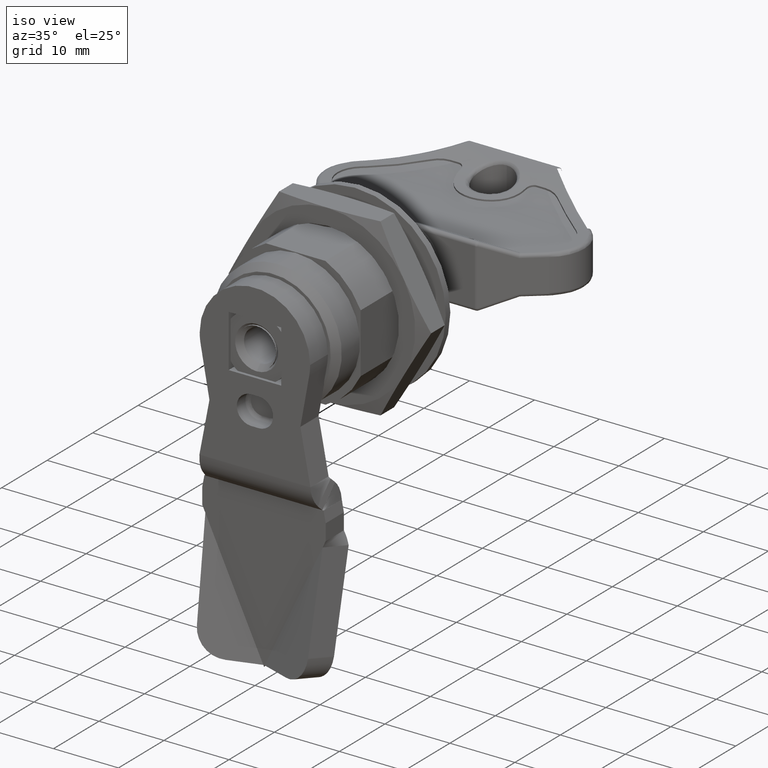
[diagram: clean part render]
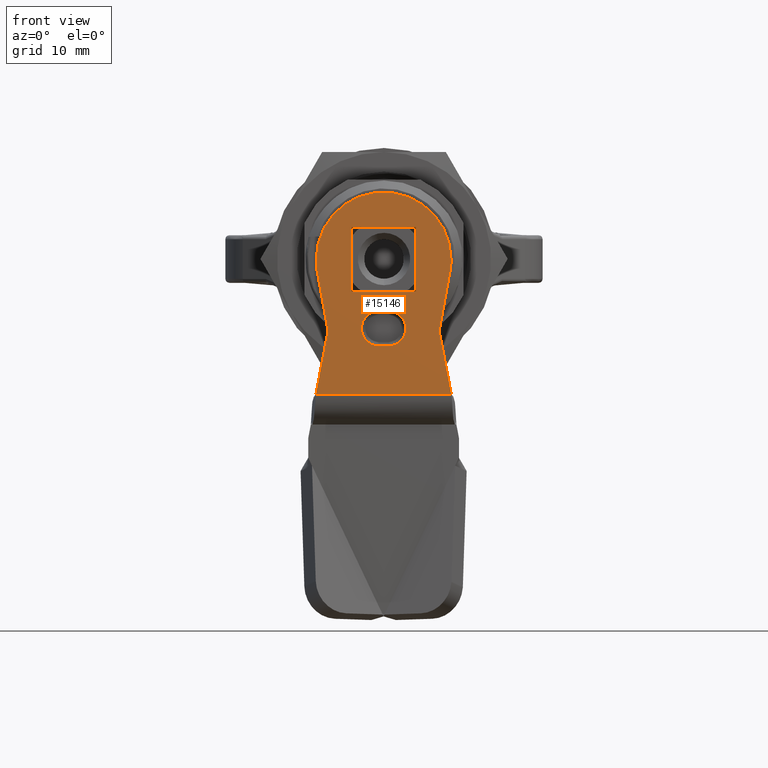
[diagram: tour spotlight — one face highlighted and labeled with its STEP entity id]
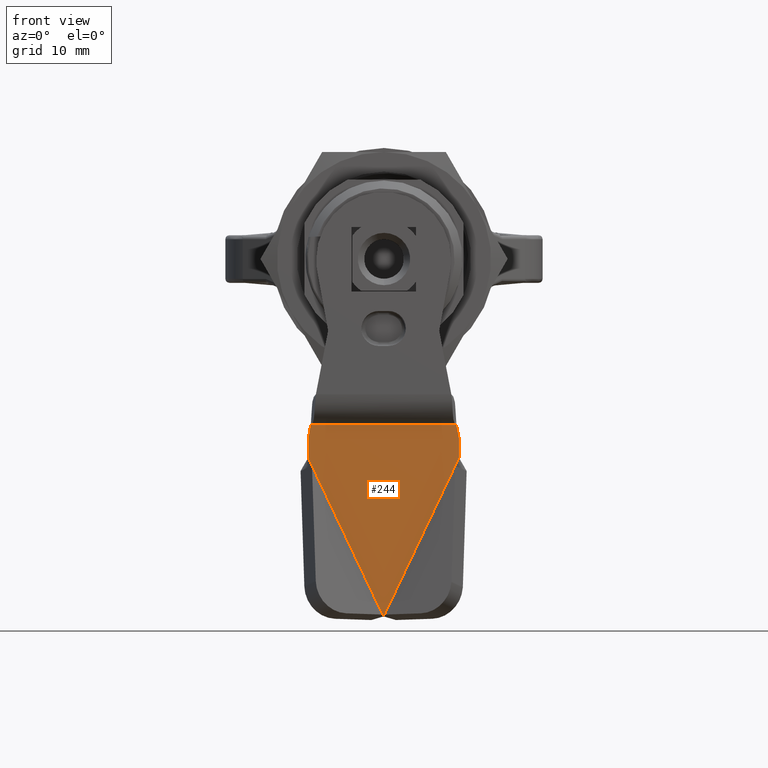
[diagram: tour spotlight — one face highlighted and labeled with its STEP entity id]
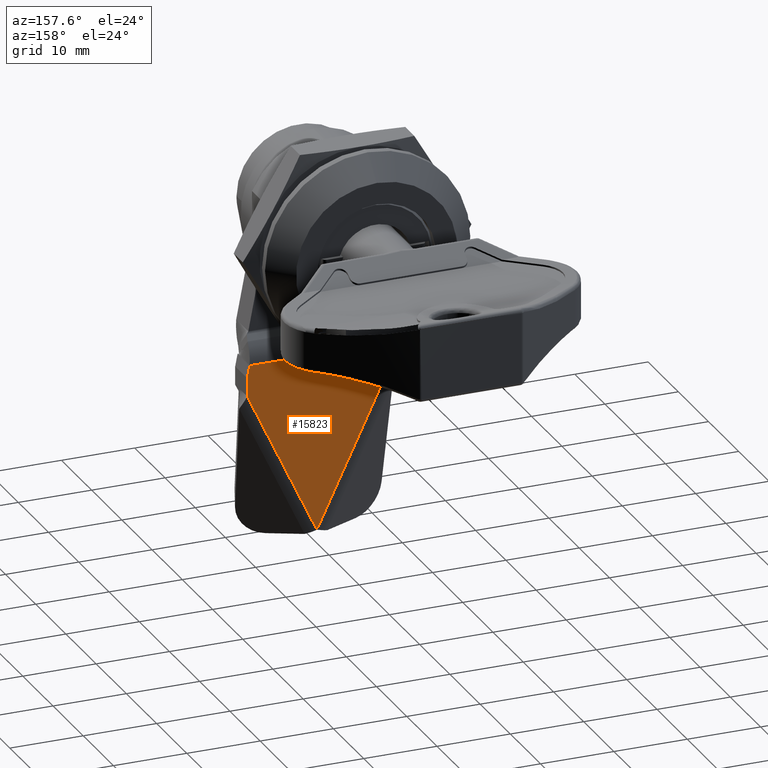
[diagram: tour spotlight — one face highlighted and labeled with its STEP entity id]
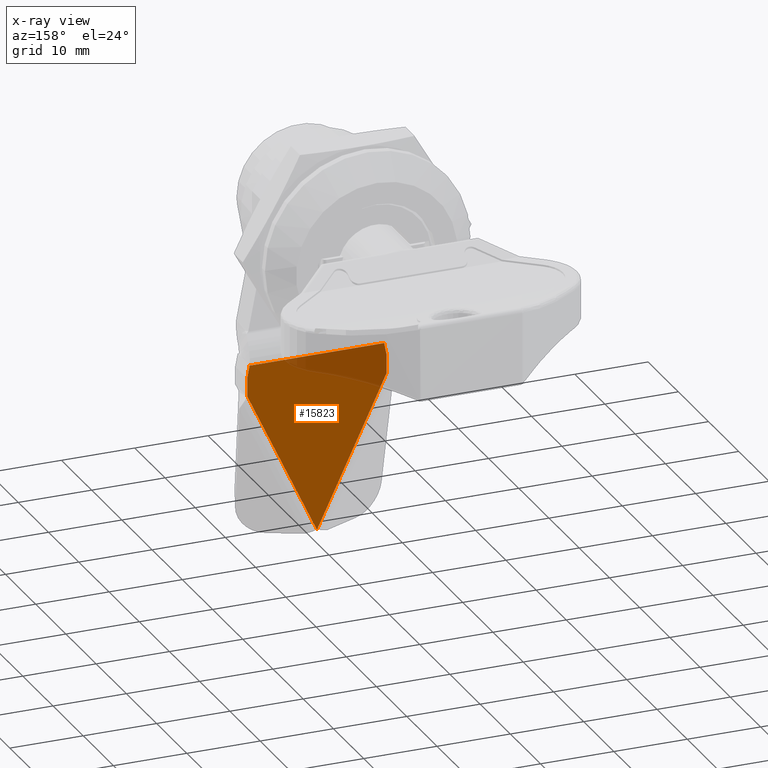
[diagram: x-ray of the same camera — body ghosted, this tour face saturated]
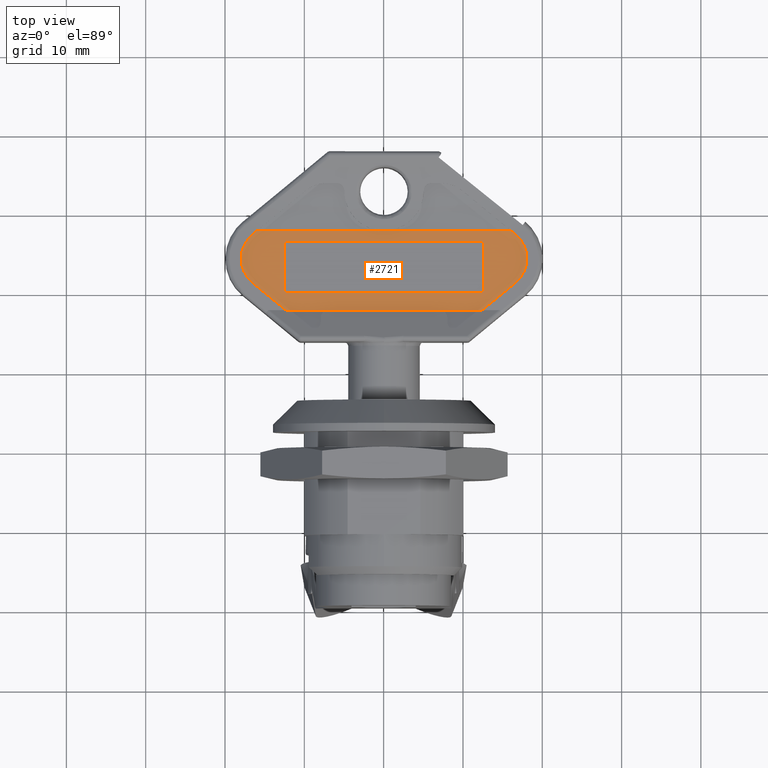
[diagram: tour spotlight — one face highlighted and labeled with its STEP entity id]
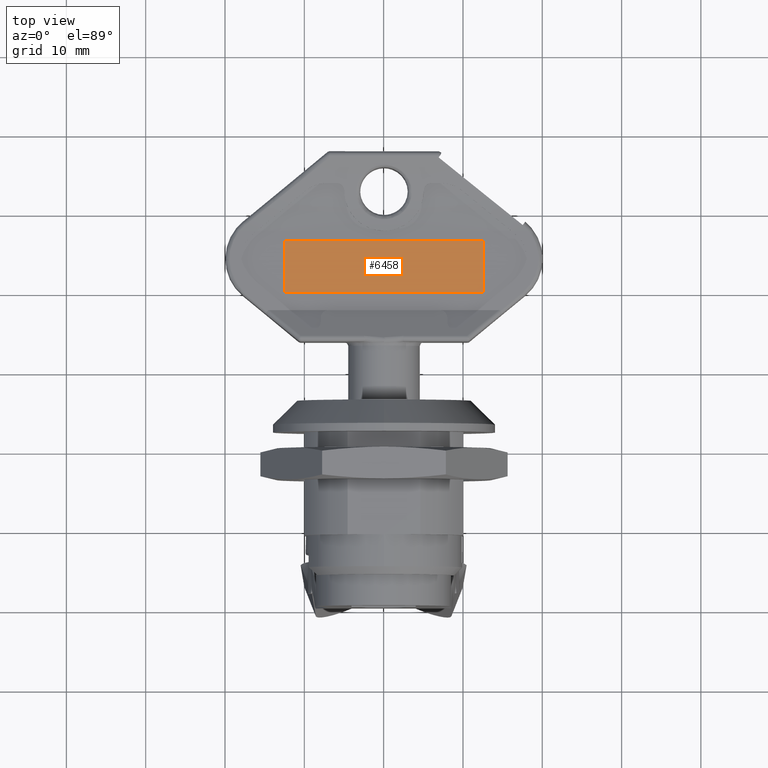
[diagram: tour spotlight — one face highlighted and labeled with its STEP entity id]
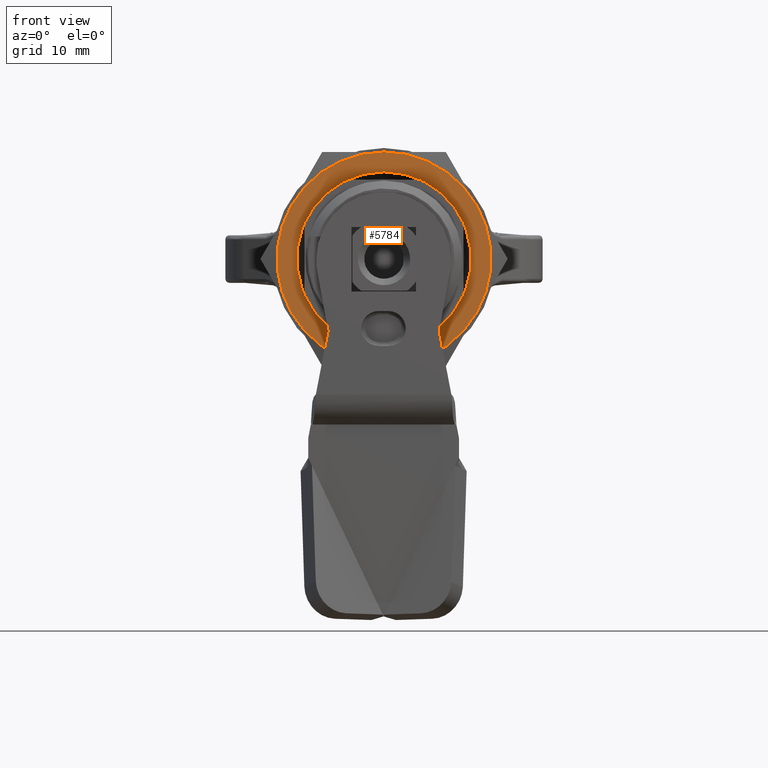
[diagram: tour spotlight — one face highlighted and labeled with its STEP entity id]
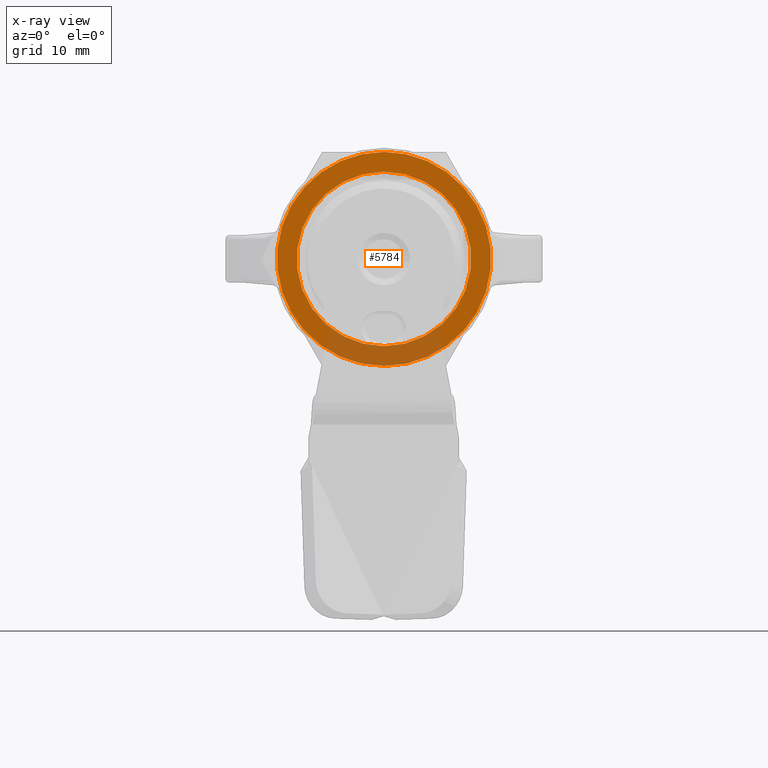
[diagram: x-ray of the same camera — body ghosted, this tour face saturated]
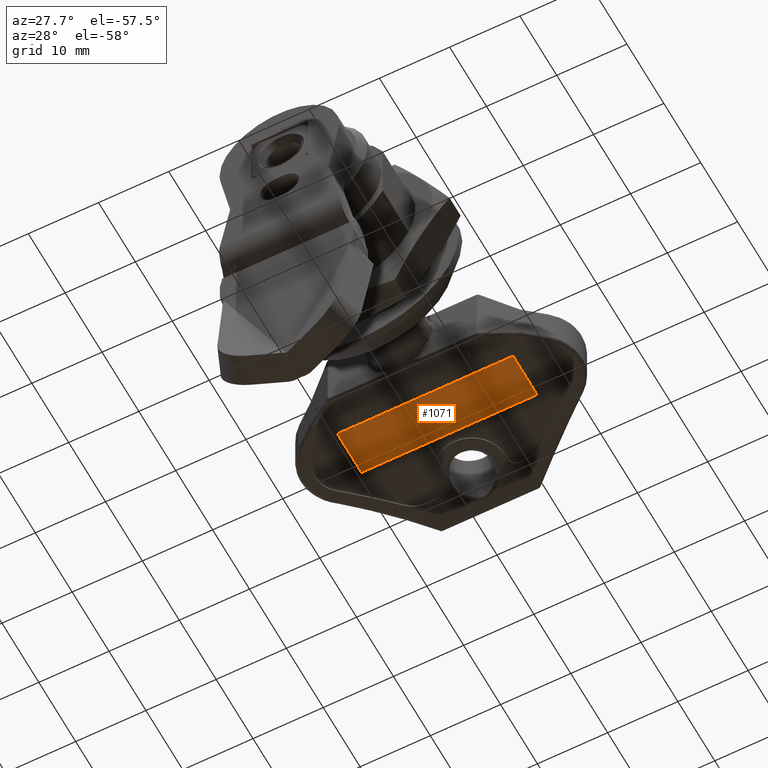
[diagram: tour spotlight — one face highlighted and labeled with its STEP entity id]
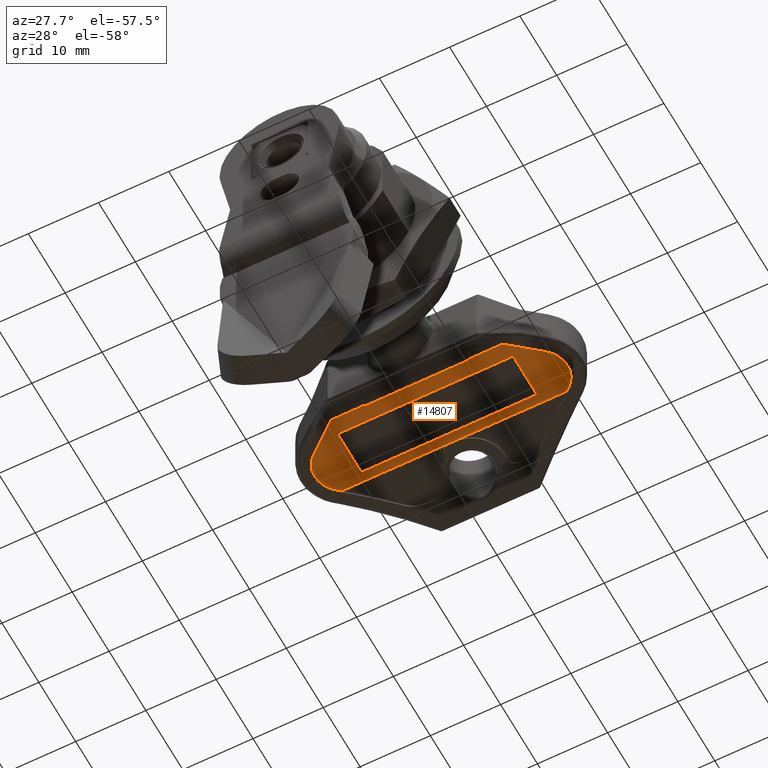
[diagram: tour spotlight — one face highlighted and labeled with its STEP entity id]
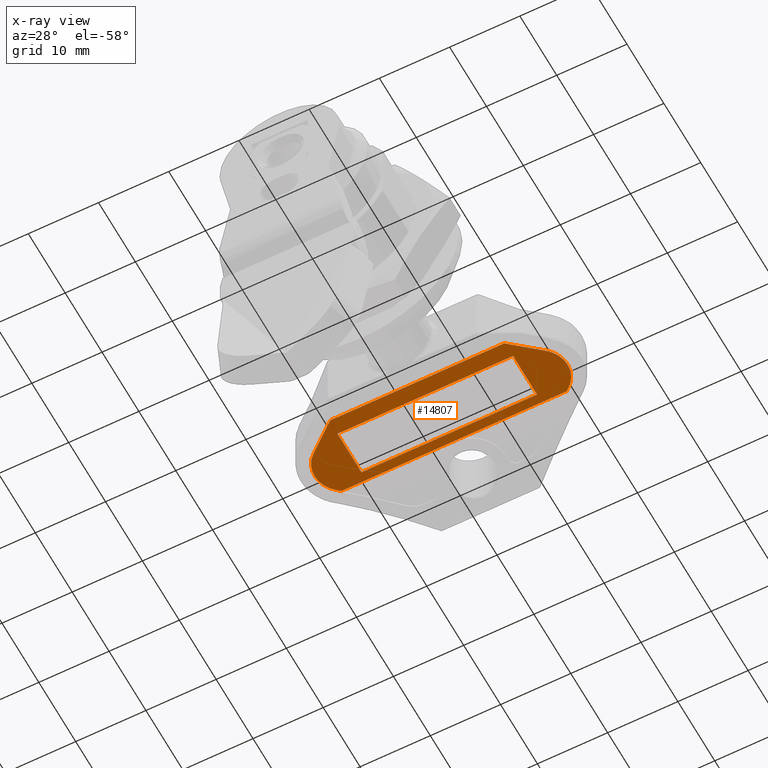
[diagram: x-ray of the same camera — body ghosted, this tour face saturated]
A machine part: a face-by-face anatomy tour. The part has 455 B-rep faces; the first image is the clean iso view, then the 8 largest visible faces are spotlighted one at a time (largest first), each with its STEP entity span.

Face 1 — front view, entity #15146. In plain terms, the highlighted planar face has unit normal (-0, -1, -0).
Definition (entity closure, byte-faithful):
#107 = EDGE_CURVE ( 'NONE', #5261, #5893, #8948, .T. ) ;
#122 = CARTESIAN_POINT ( 'NONE',  ( 18.49383272429412983, -2.898034852546181021E-20, 8.499999999999891642 ) ) ;
#548 = CARTESIAN_POINT ( 'NONE',  ( 9.393832724294350456, -1.089205495387618072E-21, -2.400000000000133138 ) ) ;
#632 = VERTEX_POINT ( 'NONE', #679 ) ;
#679 = CARTESIAN_POINT ( 'NONE',  ( 18.53229426275621705, -2.775557608965464386E-13, -8.500000000000113687 ) ) ;
#719 = ORIENTED_EDGE ( 'NONE', *, *, #9572, .T. ) ;
#818 = ORIENTED_EDGE ( 'NONE', *, *, #5177, .T. ) ;
#833 = CIRCLE ( 'NONE', #5467, 2.200000000000007283 ) ;
#870 = LINE ( 'NONE', #2517, #10299 ) ;
#922 = EDGE_CURVE ( 'NONE', #13661, #6240, #5344, .T. ) ;
#1099 = DIRECTION ( 'NONE',  ( -9.491490119797218270E-22, -1.000000000000000000, -2.606590107582205454E-23 ) ) ;
#1199 = FACE_BOUND ( 'NONE', #10345, .T. ) ;
#1205 = EDGE_CURVE ( 'NONE', #16526, #9534, #14849, .T. ) ;
#1213 = VECTOR ( 'NONE', #14909, 1000.000000000000000 ) ;
#1253 = VECTOR ( 'NONE', #4986, 1000.000000000000000 ) ;
#1407 = EDGE_CURVE ( 'NONE', #4281, #3235, #6569, .T. ) ;
#1484 = VERTEX_POINT ( 'NONE', #11325 ) ;
#1563 = DIRECTION ( 'NONE',  ( -1.555047507678549930E-21, -1.000000000000000000, -2.606590107582206336E-23 ) ) ;
#1626 = EDGE_CURVE ( 'NONE', #1857, #632, #14999, .T. ) ;
#1651 = DIRECTION ( 'NONE',  ( -1.555047507678549930E-21, -1.000000000000000000, -2.606590107582206336E-23 ) ) ;
#1857 = VERTEX_POINT ( 'NONE', #17205 ) ;
#1862 = CARTESIAN_POINT ( 'NONE',  ( 14.04383272429401153, -1.110223284688039815E-13, 12.54999999999939675 ) ) ;
#2206 = ORIENTED_EDGE ( 'NONE', *, *, #14906, .T. ) ;
#2517 = CARTESIAN_POINT ( 'NONE',  ( 2.993832724294037018, 2.775557606537453008E-13, -0.4999999999999067413 ) ) ;
#2642 = ORIENTED_EDGE ( 'NONE', *, *, #10766, .T. ) ;
#2928 = CARTESIAN_POINT ( 'NONE',  ( 1.493832724294128722, -2.544540885847657737E-21, 8.499999999999893419 ) ) ;
#3017 = CARTESIAN_POINT ( 'NONE',  ( 9.993832724294129832, -1.576244471181770961E-20, 8.499999999999891642 ) ) ;
#3088 = AXIS2_PLACEMENT_3D ( 'NONE', #11242, #18961, #11143 ) ;
#3213 = CARTESIAN_POINT ( 'NONE',  ( 9.993832724294383851, -1.058959897749675042E-20, 4.449999999999892708 ) ) ;
#3218 = DIRECTION ( 'NONE',  ( 1.000000000000000000, -9.491490119797216389E-22, 1.387778780781500218E-17 ) ) ;
#3235 = VERTEX_POINT ( 'NONE', #7329 ) ;
#3238 = VECTOR ( 'NONE', #10654, 1000.000000000000000 ) ;
#3260 = CIRCLE ( 'NONE', #4484, 2.200000000000007283 ) ;
#3563 = AXIS2_PLACEMENT_3D ( 'NONE', #16688, #1651, #9990 ) ;
#3583 = VERTEX_POINT ( 'NONE', #11659 ) ;
#3844 = DIRECTION ( 'NONE',  ( -0.1888473936501826045, -2.303686198590236310E-21, 0.9820064469806361052 ) ) ;
#4281 = VERTEX_POINT ( 'NONE', #7986 ) ;
#4291 = FACE_BOUND ( 'NONE', #16983, .T. ) ;
#4484 = AXIS2_PLACEMENT_3D ( 'NONE', #16488, #13790, #9039 ) ;
#4569 = CARTESIAN_POINT ( 'NONE',  ( 9.993832724294124503, -1.110223233978061033E-13, 12.54999999999989058 ) ) ;
#4667 = DIRECTION ( 'NONE',  ( 1.000000000000000000, -9.491490119797216389E-22, 1.387778780781500218E-17 ) ) ;
#4986 = DIRECTION ( 'NONE',  ( -1.000000000000000000, 9.491490119797216389E-22, -1.387778780781500218E-17 ) ) ;
#5023 = ORIENTED_EDGE ( 'NONE', *, *, #14443, .T. ) ;
#5177 = EDGE_CURVE ( 'NONE', #6831, #16812, #18817, .T. ) ;
#5261 = VERTEX_POINT ( 'NONE', #14992 ) ;
#5280 = DIRECTION ( 'NONE',  ( 1.555047507678549930E-21, 1.000000000000000000, 2.606590107582206336E-23 ) ) ;
#5344 = CIRCLE ( 'NONE', #10316, 8.500000000000028422 ) ;
#5462 = VERTEX_POINT ( 'NONE', #10428 ) ;
#5467 = AXIS2_PLACEMENT_3D ( 'NONE', #11095, #5280, #11492 ) ;
#5487 = LINE ( 'NONE', #17396, #8810 ) ;
#5664 = EDGE_CURVE ( 'NONE', #17276, #10166, #13807, .T. ) ;
#5833 = DIRECTION ( 'NONE',  ( 1.000000000000000000, -9.491490119797218270E-22, 1.387778780781500218E-17 ) ) ;
#5893 = VERTEX_POINT ( 'NONE', #17458 ) ;
#5968 = ORIENTED_EDGE ( 'NONE', *, *, #10846, .T. ) ;
#6240 = VERTEX_POINT ( 'NONE', #2928 ) ;
#6363 = DIRECTION ( 'NONE',  ( 1.000000000000000000, -9.491490119797216389E-22, 0.0000000000000000000 ) ) ;
#6479 = CARTESIAN_POINT ( 'NONE',  ( 1.631527579109042669, 2.775557528104917874E-13, 6.976237335143668616 ) ) ;
#6488 = EDGE_CURVE ( 'NONE', #3235, #1857, #870, .T. ) ;
#6569 = LINE ( 'NONE', #6479, #11791 ) ;
#6743 = LINE ( 'NONE', #12668, #14151 ) ;
#6831 = VERTEX_POINT ( 'NONE', #13736 ) ;
#7329 = CARTESIAN_POINT ( 'NONE',  ( 2.993832724294037018, 2.775557606537453008E-13, -0.4999999999999067413 ) ) ;
#7598 = ORIENTED_EDGE ( 'NONE', *, *, #11210, .T. ) ;
#7599 = VECTOR ( 'NONE', #15550, 1000.000000000000227 ) ;
#7669 = CARTESIAN_POINT ( 'NONE',  ( 14.04383272429401686, -2.083344258681784702E-20, 8.499999999999396039 ) ) ;
#7814 = CARTESIAN_POINT ( 'NONE',  ( 9.993832724294129832, -1.576244471181770961E-20, 8.499999999999891642 ) ) ;
#7986 = CARTESIAN_POINT ( 'NONE',  ( 1.631527579109042669, 2.775557528104917874E-13, 6.976237335143779639 ) ) ;
#7999 = DIRECTION ( 'NONE',  ( -1.555047507678549930E-21, -1.000000000000000000, -2.606590107582206336E-23 ) ) ;
#8445 = CARTESIAN_POINT ( 'NONE',  ( 5.943832724294360048, 2.775557402919965387E-13, 12.54999999999999538 ) ) ;
#8523 = CARTESIAN_POINT ( 'NONE',  ( 18.35613786947923387, -1.110223267491684545E-13, 6.976237335144026552 ) ) ;
#8792 = VECTOR ( 'NONE', #4667, 1000.000000000000000 ) ;
#8810 = VECTOR ( 'NONE', #15756, 1000.000000000000000 ) ;
#8948 = CIRCLE ( 'NONE', #3088, 2.200000000000007283 ) ;
#9039 = DIRECTION ( 'NONE',  ( 1.000000000000000000, -9.491490119797216389E-22, 1.786469488754518507E-15 ) ) ;
#9405 = ORIENTED_EDGE ( 'NONE', *, *, #5664, .T. ) ;
#9487 = DIRECTION ( 'NONE',  ( 0.1792661958653820886, 2.317316587787485192E-21, -0.9838006053159117359 ) ) ;
#9534 = VERTEX_POINT ( 'NONE', #1862 ) ;
#9572 = EDGE_CURVE ( 'NONE', #5893, #17276, #833, .T. ) ;
#9951 = CARTESIAN_POINT ( 'NONE',  ( 10.59383272429421829, -2.591723618013112185E-21, -2.400000000000129585 ) ) ;
#9981 = ORIENTED_EDGE ( 'NONE', *, *, #1205, .T. ) ;
#9990 = DIRECTION ( 'NONE',  ( 1.000000000000000000, -9.491490119797216389E-22, 0.0000000000000000000 ) ) ;
#10015 = CARTESIAN_POINT ( 'NONE',  ( 9.393832724293462277, -1.089205495387618072E-21, -2.400000000000133138 ) ) ;
#10166 = VERTEX_POINT ( 'NONE', #10015 ) ;
#10299 = VECTOR ( 'NONE', #18653, 999.9999999999998863 ) ;
#10316 = AXIS2_PLACEMENT_3D ( 'NONE', #3017, #1563, #11913 ) ;
#10345 = EDGE_LOOP ( 'NONE', ( #9405, #2206, #16158, #15052, #719 ) ) ;
#10373 = VECTOR ( 'NONE', #16391, 1000.000000000000000 ) ;
#10428 = CARTESIAN_POINT ( 'NONE',  ( 14.04383272429427265, -2.775557718168859813E-13, 4.449999999999398881 ) ) ;
#10654 = DIRECTION ( 'NONE',  ( -1.000000000000000000, 9.491490119797216389E-22, -1.387778780781500218E-17 ) ) ;
#10766 = EDGE_CURVE ( 'NONE', #16812, #13661, #15306, .T. ) ;
#10846 = EDGE_CURVE ( 'NONE', #3583, #16526, #5487, .T. ) ;
#11095 = CARTESIAN_POINT ( 'NONE',  ( 10.59383272429420053, -1.110223078641803578E-13, -0.2000000000001497247 ) ) ;
#11143 = DIRECTION ( 'NONE',  ( 1.000000000000000000, -9.491490146931579429E-22, -1.761828530288938789E-15 ) ) ;
#11210 = EDGE_CURVE ( 'NONE', #6240, #4281, #18373, .T. ) ;
#11242 = CARTESIAN_POINT ( 'NONE',  ( 10.59383272429420053, -1.110223078641803578E-13, -0.2000000000001497247 ) ) ;
#11325 = CARTESIAN_POINT ( 'NONE',  ( 9.393832724294426839, -6.709087266214198951E-21, 1.999999999999938494 ) ) ;
#11492 = DIRECTION ( 'NONE',  ( 1.000000000000000000, -9.491490146931579429E-22, 1.232047923278978193E-17 ) ) ;
#11521 = VECTOR ( 'NONE', #3218, 1000.000000000000000 ) ;
#11546 = FACE_OUTER_BOUND ( 'NONE', #11835, .T. ) ;
#11659 = CARTESIAN_POINT ( 'NONE',  ( 5.943832724294483505, -5.518601102496613005E-21, 4.449999999999997513 ) ) ;
#11725 = ORIENTED_EDGE ( 'NONE', *, *, #6488, .T. ) ;
#11776 = ORIENTED_EDGE ( 'NONE', *, *, #1407, .T. ) ;
#11791 = VECTOR ( 'NONE', #9487, 1000.000000000000114 ) ;
#11835 = EDGE_LOOP ( 'NONE', ( #11725, #16260, #5023, #818, #2642, #16836, #7598, #11776 ) ) ;
#11913 = DIRECTION ( 'NONE',  ( 1.000000000000000000, -9.491490119797216389E-22, 0.0000000000000000000 ) ) ;
#12520 = AXIS2_PLACEMENT_3D ( 'NONE', #7814, #7999, #6363 ) ;
#12668 = CARTESIAN_POINT ( 'NONE',  ( 18.53229426275621705, -2.775557608965464386E-13, -8.500000000000113687 ) ) ;
#12850 = CARTESIAN_POINT ( 'NONE',  ( 16.99383272429438563, -2.775557691882089883E-13, -0.5000000000001080247 ) ) ;
#13151 = EDGE_CURVE ( 'NONE', #9534, #5462, #16764, .T. ) ;
#13580 = EDGE_CURVE ( 'NONE', #5462, #3583, #15023, .T. ) ;
#13661 = VERTEX_POINT ( 'NONE', #122 ) ;
#13736 = CARTESIAN_POINT ( 'NONE',  ( 16.99383272429438563, -2.775557691882089883E-13, -0.5000000000001080247 ) ) ;
#13790 = DIRECTION ( 'NONE',  ( 1.555047507678549930E-21, 1.000000000000000000, 2.606590107582206336E-23 ) ) ;
#13807 = LINE ( 'NONE', #548, #1253 ) ;
#13879 = ORIENTED_EDGE ( 'NONE', *, *, #13151, .T. ) ;
#14151 = VECTOR ( 'NONE', #3844, 1000.000000000000000 ) ;
#14443 = EDGE_CURVE ( 'NONE', #632, #6831, #6743, .T. ) ;
#14849 = LINE ( 'NONE', #4569, #11521 ) ;
#14856 = LINE ( 'NONE', #18106, #8792 ) ;
#14906 = EDGE_CURVE ( 'NONE', #10166, #1484, #3260, .T. ) ;
#14909 = DIRECTION ( 'NONE',  ( 1.000000000000000000, -9.491490119797216389E-22, 1.387778780781500218E-17 ) ) ;
#14992 = CARTESIAN_POINT ( 'NONE',  ( 10.59383272429562872, -8.211605388839693064E-21, 1.999999999999940270 ) ) ;
#14999 = LINE ( 'NONE', #16529, #1213 ) ;
#15023 = LINE ( 'NONE', #3213, #3238 ) ;
#15052 = ORIENTED_EDGE ( 'NONE', *, *, #107, .T. ) ;
#15146 = ADVANCED_FACE ( 'NONE', ( #1199, #4291, #11546 ), #17636, .T. ) ;
#15301 = AXIS2_PLACEMENT_3D ( 'NONE', #16098, #1099, #5833 ) ;
#15306 = CIRCLE ( 'NONE', #12520, 8.500000000000028422 ) ;
#15550 = DIRECTION ( 'NONE',  ( 0.1792661958653768428, -2.657617238618489633E-21, 0.9838006053159127351 ) ) ;
#15756 = DIRECTION ( 'NONE',  ( -2.928213227448855109E-15, -2.528425874264713630E-21, 1.000000000000000000 ) ) ;
#16098 = CARTESIAN_POINT ( 'NONE',  ( 9.993832724294129832, -1.576244471181770961E-20, 8.499999999999891642 ) ) ;
#16158 = ORIENTED_EDGE ( 'NONE', *, *, #16318, .T. ) ;
#16260 = ORIENTED_EDGE ( 'NONE', *, *, #1626, .T. ) ;
#16318 = EDGE_CURVE ( 'NONE', #1484, #5261, #14856, .T. ) ;
#16391 = DIRECTION ( 'NONE',  ( 2.928213227448855109E-15, 2.528425874264713630E-21, -1.000000000000000000 ) ) ;
#16488 = CARTESIAN_POINT ( 'NONE',  ( 9.393832724294332692, -3.899146578016134817E-21, -0.2000000000001531664 ) ) ;
#16526 = VERTEX_POINT ( 'NONE', #8445 ) ;
#16529 = CARTESIAN_POINT ( 'NONE',  ( 9.993832724294389180, 5.950735556502609777E-21, -8.500000000000127898 ) ) ;
#16688 = CARTESIAN_POINT ( 'NONE',  ( 9.993832724294129832, -1.576244471181770961E-20, 8.499999999999891642 ) ) ;
#16764 = LINE ( 'NONE', #7669, #10373 ) ;
#16812 = VERTEX_POINT ( 'NONE', #8523 ) ;
#16836 = ORIENTED_EDGE ( 'NONE', *, *, #922, .T. ) ;
#16983 = EDGE_LOOP ( 'NONE', ( #17316, #5968, #9981, #13879 ) ) ;
#17205 = CARTESIAN_POINT ( 'NONE',  ( 1.455371185832545988, 1.665334703355018786E-13, -8.500000000000362377 ) ) ;
#17276 = VERTEX_POINT ( 'NONE', #9951 ) ;
#17316 = ORIENTED_EDGE ( 'NONE', *, *, #13580, .T. ) ;
#17396 = CARTESIAN_POINT ( 'NONE',  ( 5.943832724294241032, -1.069144683681757220E-20, 8.499999999999996447 ) ) ;
#17458 = CARTESIAN_POINT ( 'NONE',  ( 12.79383272429420160, -1.110223112852848666E-13, -0.2000000000001496969 ) ) ;
#17636 = PLANE ( 'NONE',  #15301 ) ;
#18106 = CARTESIAN_POINT ( 'NONE',  ( 10.59383272429429645, -8.211605388839693064E-21, 1.999999999999940270 ) ) ;
#18373 = CIRCLE ( 'NONE', #3563, 8.500000000000028422 ) ;
#18653 = DIRECTION ( 'NONE',  ( -0.1888473936501770256, 2.662174843108684082E-21, -0.9820064469806373264 ) ) ;
#18817 = LINE ( 'NONE', #12850, #7599 ) ;
#18961 = DIRECTION ( 'NONE',  ( 1.555047507678549930E-21, 1.000000000000000000, 2.606590107582206336E-23 ) ) ;

Face 2 — front view, entity #244. In plain terms, the highlighted planar face has unit normal (-0, -1, -0).
Definition (entity closure, byte-faithful):
#244 = ADVANCED_FACE ( 'NONE', ( #9878 ), #4079, .T. ) ;
#334 = VERTEX_POINT ( 'NONE', #1298 ) ;
#345 = VECTOR ( 'NONE', #6782, 1000.000000000000000 ) ;
#382 = LINE ( 'NONE', #12096, #2889 ) ;
#584 = LINE ( 'NONE', #6556, #16617 ) ;
#667 = DIRECTION ( 'NONE',  ( 0.4290568145684006685, -2.691109073604376104E-21, 0.9032775043542360383 ) ) ;
#1090 = LINE ( 'NONE', #13970, #345 ) ;
#1176 = EDGE_CURVE ( 'NONE', #4774, #7976, #12481, .T. ) ;
#1220 = DIRECTION ( 'NONE',  ( -0.4290568145736099459, 2.691109068085712246E-21, -0.9032775043517617952 ) ) ;
#1298 = CARTESIAN_POINT ( 'NONE',  ( 0.4938327242945579343, 1.995836943966100563, -16.50421735305010529 ) ) ;
#1529 = VERTEX_POINT ( 'NONE', #18850 ) ;
#1671 = ORIENTED_EDGE ( 'NONE', *, *, #6024, .F. ) ;
#1896 = EDGE_CURVE ( 'NONE', #1529, #10407, #14412, .T. ) ;
#2336 = VECTOR ( 'NONE', #5110, 1000.000000000000114 ) ;
#2405 = ORIENTED_EDGE ( 'NONE', *, *, #12181, .F. ) ;
#2536 = DIRECTION ( 'NONE',  ( 1.000000000000000000, -9.491490119797218270E-22, 1.387778780781500218E-17 ) ) ;
#2597 = CARTESIAN_POINT ( 'NONE',  ( 19.07347873686344997, 1.995836943966100563, -12.31837661841011489 ) ) ;
#2633 = ORIENTED_EDGE ( 'NONE', *, *, #10743, .F. ) ;
#2889 = VECTOR ( 'NONE', #6081, 1000.000000000000000 ) ;
#3450 = CARTESIAN_POINT ( 'NONE',  ( 0.4938327242942353035, 1.995836943966655674, -14.00421735305015325 ) ) ;
#3481 = CARTESIAN_POINT ( 'NONE',  ( 10.10026265079565988, 1.995836943966544652, -36.28015434988348176 ) ) ;
#3560 = VECTOR ( 'NONE', #6983, 1000.000000000000000 ) ;
#3927 = CARTESIAN_POINT ( 'NONE',  ( 0.8180328655710815688, 1.995836943966655674, -12.31837661841008824 ) ) ;
#4079 = PLANE ( 'NONE',  #13597 ) ;
#4098 = DIRECTION ( 'NONE',  ( 0.1888473936501131878, 2.303686203323505937E-21, -0.9820064469806495389 ) ) ;
#4141 = VERTEX_POINT ( 'NONE', #5789 ) ;
#4214 = VERTEX_POINT ( 'NONE', #8585 ) ;
#4368 = EDGE_CURVE ( 'NONE', #14778, #18784, #7702, .T. ) ;
#4774 = VERTEX_POINT ( 'NONE', #15712 ) ;
#5110 = DIRECTION ( 'NONE',  ( -0.4290568145677269296, 2.691109070448498021E-21, -0.9032775043545562266 ) ) ;
#5184 = VECTOR ( 'NONE', #11994, 1000.000000000000000 ) ;
#5522 = DIRECTION ( 'NONE',  ( -9.491490119797218270E-22, -1.000000000000000000, -2.606590107582205454E-23 ) ) ;
#5728 = LINE ( 'NONE', #8831, #3560 ) ;
#5789 = CARTESIAN_POINT ( 'NONE',  ( 19.49383272429422931, 1.995836943966100563, -14.00421735305012483 ) ) ;
#5891 = ORIENTED_EDGE ( 'NONE', *, *, #15152, .T. ) ;
#6011 = EDGE_CURVE ( 'NONE', #7261, #17948, #7292, .T. ) ;
#6024 = EDGE_CURVE ( 'NONE', #18784, #1529, #1090, .T. ) ;
#6081 = DIRECTION ( 'NONE',  ( -2.928213227448855109E-15, -2.528425874264713630E-21, 1.000000000000000000 ) ) ;
#6120 = CARTESIAN_POINT ( 'NONE',  ( 0.4938327242940774298, 1.995836943966100563, 7.995782646951425043 ) ) ;
#6195 = CARTESIAN_POINT ( 'NONE',  ( 9.887402797788318765, 1.995836943966544652, -36.28015434988048327 ) ) ;
#6207 = DIRECTION ( 'NONE',  ( 2.928213227448855109E-15, 2.528425874264713630E-21, -1.000000000000000000 ) ) ;
#6339 = ORIENTED_EDGE ( 'NONE', *, *, #6011, .F. ) ;
#6477 = EDGE_LOOP ( 'NONE', ( #2405, #14065, #1671, #11570, #17865, #13885, #2633, #5891, #6619, #6339, #7415, #11542, #18365 ) ) ;
#6556 = CARTESIAN_POINT ( 'NONE',  ( 10.10026265079521579, 1.995836943966100563, -36.28015434988014931 ) ) ;
#6619 = ORIENTED_EDGE ( 'NONE', *, *, #12624, .F. ) ;
#6730 = EDGE_CURVE ( 'NONE', #4774, #4141, #382, .T. ) ;
#6782 = DIRECTION ( 'NONE',  ( 1.000000000000000000, -9.491490119797216389E-22, 1.387778780781539353E-17 ) ) ;
#6983 = DIRECTION ( 'NONE',  ( 0.4290568145684047208, 1.876631353125319380E-21, -0.9032775043542342619 ) ) ;
#7254 = VECTOR ( 'NONE', #10917, 1000.000000000000114 ) ;
#7261 = VERTEX_POINT ( 'NONE', #3481 ) ;
#7292 = LINE ( 'NONE', #16118, #14574 ) ;
#7307 = EDGE_CURVE ( 'NONE', #7261, #7976, #584, .T. ) ;
#7415 = ORIENTED_EDGE ( 'NONE', *, *, #7307, .T. ) ;
#7702 = LINE ( 'NONE', #18244, #5184 ) ;
#7976 = VERTEX_POINT ( 'NONE', #16381 ) ;
#8039 = CARTESIAN_POINT ( 'NONE',  ( 1.743832724294283265, 1.995836943966655674, -7.504217353050032457 ) ) ;
#8192 = CARTESIAN_POINT ( 'NONE',  ( 0.7296885170978342217, 1.995836943966100563, -17.00075586421504070 ) ) ;
#8197 = VECTOR ( 'NONE', #4098, 999.9999999999998863 ) ;
#8347 = VERTEX_POINT ( 'NONE', #6195 ) ;
#8477 = DIRECTION ( 'NONE',  ( 1.000000000000000000, -9.491490119797216389E-22, 1.387778780781500218E-17 ) ) ;
#8585 = CARTESIAN_POINT ( 'NONE',  ( 0.9655443099006507657, 1.995836943966100563, -17.49729437537964216 ) ) ;
#8612 = CARTESIAN_POINT ( 'NONE',  ( 9.940617761041597333, 1.995836943966100563, -36.39218585146881679 ) ) ;
#8831 = CARTESIAN_POINT ( 'NONE',  ( 0.9655443099010948549, 1.995836943966100563, -17.49729437538008625 ) ) ;
#9843 = VECTOR ( 'NONE', #8477, 1000.000000000000000 ) ;
#9878 = FACE_OUTER_BOUND ( 'NONE', #6477, .T. ) ;
#10338 = VECTOR ( 'NONE', #16080, 1000.000000000000000 ) ;
#10407 = VERTEX_POINT ( 'NONE', #17518 ) ;
#10743 = EDGE_CURVE ( 'NONE', #4214, #334, #17010, .T. ) ;
#10917 = DIRECTION ( 'NONE',  ( -0.4290568145677309819, -1.876631365748346094E-21, 0.9032775043545542282 ) ) ;
#11542 = ORIENTED_EDGE ( 'NONE', *, *, #1176, .F. ) ;
#11570 = ORIENTED_EDGE ( 'NONE', *, *, #4368, .F. ) ;
#11664 = CARTESIAN_POINT ( 'NONE',  ( 18.24383272429403746, 1.995836943966100563, -7.504217353050123052 ) ) ;
#11994 = DIRECTION ( 'NONE',  ( 1.000000000000000000, -9.491490119797216389E-22, 1.387778780781500218E-17 ) ) ;
#12096 = CARTESIAN_POINT ( 'NONE',  ( 19.49383272429421154, 1.995836943965989541, 7.995782646951230532 ) ) ;
#12133 = LINE ( 'NONE', #6120, #14336 ) ;
#12181 = EDGE_CURVE ( 'NONE', #10407, #4141, #18883, .T. ) ;
#12415 = CARTESIAN_POINT ( 'NONE',  ( 9.993832724292655456, 1.995836943966100563, -36.50421735304994542 ) ) ;
#12481 = LINE ( 'NONE', #18353, #2336 ) ;
#12624 = EDGE_CURVE ( 'NONE', #17948, #8347, #12900, .T. ) ;
#12763 = VERTEX_POINT ( 'NONE', #3450 ) ;
#12900 = LINE ( 'NONE', #8612, #10338 ) ;
#13597 = AXIS2_PLACEMENT_3D ( 'NONE', #15787, #5522, #2536 ) ;
#13881 = LINE ( 'NONE', #8039, #14059 ) ;
#13885 = ORIENTED_EDGE ( 'NONE', *, *, #17937, .T. ) ;
#13969 = DIRECTION ( 'NONE',  ( 0.1888473936501076089, -2.662174822598230581E-21, 0.9820064469806506491 ) ) ;
#13970 = CARTESIAN_POINT ( 'NONE',  ( 9.993832724294396286, 1.995836943965656474, -12.31837661841057319 ) ) ;
#14059 = VECTOR ( 'NONE', #13969, 1000.000000000000114 ) ;
#14065 = ORIENTED_EDGE ( 'NONE', *, *, #1896, .F. ) ;
#14336 = VECTOR ( 'NONE', #6207, 1000.000000000000000 ) ;
#14412 = LINE ( 'NONE', #2597, #9843 ) ;
#14574 = VECTOR ( 'NONE', #1220, 1000.000000000000000 ) ;
#14778 = VERTEX_POINT ( 'NONE', #3927 ) ;
#15152 = EDGE_CURVE ( 'NONE', #4214, #8347, #5728, .T. ) ;
#15712 = CARTESIAN_POINT ( 'NONE',  ( 19.49383272429378877, 1.995836943966100563, -16.50421735304996673 ) ) ;
#15787 = CARTESIAN_POINT ( 'NONE',  ( 9.993832724294129832, 1.995836943966100563, 7.995782646951494321 ) ) ;
#16080 = DIRECTION ( 'NONE',  ( -0.4290568145736139427, -1.876631368892854420E-21, 0.9032775043517597968 ) ) ;
#16118 = CARTESIAN_POINT ( 'NONE',  ( 10.04704768754415767, 1.995836943966100563, -36.39218585146881679 ) ) ;
#16381 = CARTESIAN_POINT ( 'NONE',  ( 19.02212113868723975, 1.995836943966100563, -17.49729437538022481 ) ) ;
#16617 = VECTOR ( 'NONE', #667, 1000.000000000000227 ) ;
#16684 = EDGE_CURVE ( 'NONE', #12763, #14778, #13881, .T. ) ;
#17010 = LINE ( 'NONE', #8192, #7254 ) ;
#17518 = CARTESIAN_POINT ( 'NONE',  ( 19.16963258301758444, 1.995836943966100563, -12.31837661841011489 ) ) ;
#17865 = ORIENTED_EDGE ( 'NONE', *, *, #16684, .F. ) ;
#17937 = EDGE_CURVE ( 'NONE', #12763, #334, #12133, .T. ) ;
#17948 = VERTEX_POINT ( 'NONE', #12415 ) ;
#18244 = CARTESIAN_POINT ( 'NONE',  ( 0.9141867117252160391, 1.995836943966655674, -12.31837661841008824 ) ) ;
#18353 = CARTESIAN_POINT ( 'NONE',  ( 19.25797693149052492, 1.995836943966100563, -17.00075586421512241 ) ) ;
#18365 = ORIENTED_EDGE ( 'NONE', *, *, #6730, .T. ) ;
#18784 = VERTEX_POINT ( 'NONE', #18800 ) ;
#18800 = CARTESIAN_POINT ( 'NONE',  ( 1.010340557878462331, 1.995836943966211585, -12.31837661841008824 ) ) ;
#18850 = CARTESIAN_POINT ( 'NONE',  ( 18.97732489071020368, 1.995836943965545451, -12.31837661841022680 ) ) ;
#18883 = LINE ( 'NONE', #11664, #8197 ) ;

Face 3 — auxiliary view, entity #15823. An x-ray twin of the same camera follows (body ghosted, this face saturated) — the face is partly hidden behind the body. In plain terms, the highlighted planar face has unit normal (-0, -1, -0).
Definition (entity closure, byte-faithful):
#386 = LINE ( 'NONE', #4727, #2719 ) ;
#432 = VERTEX_POINT ( 'NONE', #10478 ) ;
#1422 = ORIENTED_EDGE ( 'NONE', *, *, #18788, .F. ) ;
#1449 = CARTESIAN_POINT ( 'NONE',  ( 19.49383272429437142, 5.995836943966104116, -16.50421735304996673 ) ) ;
#1618 = ORIENTED_EDGE ( 'NONE', *, *, #18885, .F. ) ;
#1674 = VECTOR ( 'NONE', #3565, 1000.000000000000114 ) ;
#2064 = VERTEX_POINT ( 'NONE', #1449 ) ;
#2447 = CARTESIAN_POINT ( 'NONE',  ( 0.4938327242942248674, 5.995836943966381227, -25.25421735305014082 ) ) ;
#2556 = LINE ( 'NONE', #11560, #2906 ) ;
#2640 = ORIENTED_EDGE ( 'NONE', *, *, #14195, .F. ) ;
#2719 = VECTOR ( 'NONE', #16437, 1000.000000000000227 ) ;
#2906 = VECTOR ( 'NONE', #8546, 1000.000000000000114 ) ;
#3216 = VERTEX_POINT ( 'NONE', #8785 ) ;
#3543 = CARTESIAN_POINT ( 'NONE',  ( 0.8180328655712203467, 5.995836943966659227, -12.31837661841019838 ) ) ;
#3552 = DIRECTION ( 'NONE',  ( -0.1888473936501131878, -2.303686203323505937E-21, 0.9820064469806495389 ) ) ;
#3565 = DIRECTION ( 'NONE',  ( -0.1888473936501651462, 2.662174825753731754E-21, -0.9820064469806394358 ) ) ;
#3574 = AXIS2_PLACEMENT_3D ( 'NONE', #4050, #9943, #15853 ) ;
#3725 = ORIENTED_EDGE ( 'NONE', *, *, #4270, .F. ) ;
#3747 = ORIENTED_EDGE ( 'NONE', *, *, #10535, .F. ) ;
#4050 = CARTESIAN_POINT ( 'NONE',  ( 9.993832724294142267, 5.995836943966104116, 7.995782646951716366 ) ) ;
#4270 = EDGE_CURVE ( 'NONE', #432, #14588, #4809, .T. ) ;
#4427 = EDGE_LOOP ( 'NONE', ( #1422, #1618, #3747, #9035, #2640, #12791, #3725 ) ) ;
#4727 = CARTESIAN_POINT ( 'NONE',  ( 0.4938327242940999673, 5.995836943966104116, -16.50421735305021542 ) ) ;
#4809 = LINE ( 'NONE', #17959, #17855 ) ;
#5725 = VERTEX_POINT ( 'NONE', #15440 ) ;
#6019 = EDGE_CURVE ( 'NONE', #5725, #3216, #6589, .T. ) ;
#6589 = LINE ( 'NONE', #2447, #16111 ) ;
#7176 = CARTESIAN_POINT ( 'NONE',  ( 0.4938327242943446049, 5.995836943966659227, -12.31837661841019838 ) ) ;
#8134 = DIRECTION ( 'NONE',  ( 2.928213227448855109E-15, 2.528425874264713630E-21, -1.000000000000000000 ) ) ;
#8546 = DIRECTION ( 'NONE',  ( 0.4290568145682867596, -2.691109071237719662E-21, 0.9032775043542902171 ) ) ;
#8785 = CARTESIAN_POINT ( 'NONE',  ( 0.4938327242940999673, 5.995836943966104116, -16.50421735305021542 ) ) ;
#9035 = ORIENTED_EDGE ( 'NONE', *, *, #6019, .F. ) ;
#9398 = VECTOR ( 'NONE', #14475, 1000.000000000000000 ) ;
#9943 = DIRECTION ( 'NONE',  ( -9.491490119797218270E-22, -1.000000000000000000, -2.606590107582205454E-23 ) ) ;
#10478 = CARTESIAN_POINT ( 'NONE',  ( 19.49383272429424352, 5.995836943966104116, -14.00421735304979265 ) ) ;
#10535 = EDGE_CURVE ( 'NONE', #3216, #12534, #386, .T. ) ;
#11369 = LINE ( 'NONE', #7176, #9398 ) ;
#11406 = PLANE ( 'NONE',  #3574 ) ;
#11560 = CARTESIAN_POINT ( 'NONE',  ( 9.993832724292655456, 5.995836943966104116, -36.50421735304994542 ) ) ;
#12189 = EDGE_CURVE ( 'NONE', #14588, #14605, #11369, .T. ) ;
#12475 = CARTESIAN_POINT ( 'NONE',  ( 0.8180328655712203467, 5.995836943966659227, -12.31837661841019838 ) ) ;
#12534 = VERTEX_POINT ( 'NONE', #12699 ) ;
#12699 = CARTESIAN_POINT ( 'NONE',  ( 9.993832724292655456, 5.995836943966104116, -36.50421735304994542 ) ) ;
#12791 = ORIENTED_EDGE ( 'NONE', *, *, #12189, .F. ) ;
#12870 = FACE_OUTER_BOUND ( 'NONE', #4427, .T. ) ;
#12932 = LINE ( 'NONE', #18703, #18638 ) ;
#13432 = CARTESIAN_POINT ( 'NONE',  ( 19.16963258301758444, 5.995836943966104116, -12.31837661840994969 ) ) ;
#14195 = EDGE_CURVE ( 'NONE', #14605, #5725, #14995, .T. ) ;
#14475 = DIRECTION ( 'NONE',  ( -1.000000000000000000, 9.491490119797216389E-22, -1.387778780781500218E-17 ) ) ;
#14588 = VERTEX_POINT ( 'NONE', #13432 ) ;
#14605 = VERTEX_POINT ( 'NONE', #3543 ) ;
#14995 = LINE ( 'NONE', #12475, #1674 ) ;
#15440 = CARTESIAN_POINT ( 'NONE',  ( 0.4938327242943463258, 5.995836943966603272, -14.00421735305015325 ) ) ;
#15823 = ADVANCED_FACE ( 'NONE', ( #12870 ), #11406, .F. ) ;
#15853 = DIRECTION ( 'NONE',  ( 1.000000000000000000, -9.491490119797218270E-22, 1.387778780781500218E-17 ) ) ;
#15909 = DIRECTION ( 'NONE',  ( -2.928213227448855109E-15, -2.528425874264713630E-21, 1.000000000000000000 ) ) ;
#16111 = VECTOR ( 'NONE', #8134, 1000.000000000000000 ) ;
#16437 = DIRECTION ( 'NONE',  ( 0.4290568145682907564, 1.876631368902748885E-21, -0.9032775043542882187 ) ) ;
#17855 = VECTOR ( 'NONE', #3552, 999.9999999999998863 ) ;
#17959 = CARTESIAN_POINT ( 'NONE',  ( 18.24383272429403746, 5.995836943966104116, -7.504217353049678962 ) ) ;
#18638 = VECTOR ( 'NONE', #15909, 1000.000000000000000 ) ;
#18703 = CARTESIAN_POINT ( 'NONE',  ( 19.49383272429437142, 5.995836943965827004, -25.25421735305000226 ) ) ;
#18788 = EDGE_CURVE ( 'NONE', #2064, #432, #12932, .T. ) ;
#18885 = EDGE_CURVE ( 'NONE', #12534, #2064, #2556, .T. ) ;

Face 4 — top view, entity #2721. In plain terms, the highlighted planar face has unit normal (-0, -0, -1).
Definition (entity closure, byte-faithful):
#139 = CARTESIAN_POINT ( 'NONE',  ( 10.04383272429410034, 47.30000000000011795, 11.31925781312753543 ) ) ;
#172 = ORIENTED_EDGE ( 'NONE', *, *, #6481, .F. ) ;
#185 = DIRECTION ( 'NONE',  ( 1.000000000000000000, -1.627250025346605968E-17, -4.177214130152150694E-15 ) ) ;
#219 = VERTEX_POINT ( 'NONE', #3793 ) ;
#303 = VERTEX_POINT ( 'NONE', #19062 ) ;
#410 = LINE ( 'NONE', #13483, #960 ) ;
#446 = ORIENTED_EDGE ( 'NONE', *, *, #6807, .F. ) ;
#498 = AXIS2_PLACEMENT_3D ( 'NONE', #7914, #9374, #6751 ) ;
#568 = ORIENTED_EDGE ( 'NONE', *, *, #6116, .F. ) ;
#677 = CARTESIAN_POINT ( 'NONE',  ( 17.01956664160409005, 37.30000000000005400, 11.31925781312495261 ) ) ;
#932 = DIRECTION ( 'NONE',  ( 4.177214130152150694E-15, 1.708564700648520199E-17, 1.000000000000000000 ) ) ;
#960 = VECTOR ( 'NONE', #13573, 1000.000000000000000 ) ;
#1056 = EDGE_CURVE ( 'NONE', #219, #6618, #4807, .T. ) ;
#1192 = CARTESIAN_POINT ( 'NONE',  ( 10.04383272429410034, 37.30000000000011084, 11.31925781312498103 ) ) ;
#1319 = EDGE_CURVE ( 'NONE', #2322, #9080, #410, .T. ) ;
#1413 = VERTEX_POINT ( 'NONE', #677 ) ;
#1498 = PLANE ( 'NONE',  #5114 ) ;
#1531 = VERTEX_POINT ( 'NONE', #3870 ) ;
#1542 = EDGE_CURVE ( 'NONE', #10272, #2186, #8703, .T. ) ;
#1637 = LINE ( 'NONE', #13544, #13698 ) ;
#2166 = DIRECTION ( 'NONE',  ( 1.000000000000000000, -1.627250025346605968E-17, -4.177214130152150694E-15 ) ) ;
#2171 = CARTESIAN_POINT ( 'NONE',  ( -2.456167275705965380, 30.30000000000016058, 11.31925781312510360 ) ) ;
#2179 = ORIENTED_EDGE ( 'NONE', *, *, #19105, .F. ) ;
#2186 = VERTEX_POINT ( 'NONE', #15171 ) ;
#2322 = VERTEX_POINT ( 'NONE', #4514 ) ;
#2329 = CARTESIAN_POINT ( 'NONE',  ( 22.54383272429416607, 39.50000000000014921, 11.31925781312492951 ) ) ;
#2392 = CARTESIAN_POINT ( 'NONE',  ( -3.956167275705966713, 43.80000000000011795, 11.31925781312508050 ) ) ;
#2469 = DIRECTION ( 'NONE',  ( -0.7732424661075838479, -0.6341104703502867812, 3.240833543117816140E-15 ) ) ;
#2519 = ORIENTED_EDGE ( 'NONE', *, *, #1319, .T. ) ;
#2702 = CARTESIAN_POINT ( 'NONE',  ( -6.492609157115802887, 46.89296986442253967, 11.31925781312510537 ) ) ;
#2721 = ADVANCED_FACE ( 'NONE', ( #8844, #9996 ), #1498, .F. ) ;
#3124 = ORIENTED_EDGE ( 'NONE', *, *, #1056, .F. ) ;
#3372 = LINE ( 'NONE', #15176, #5735 ) ;
#3461 = CARTESIAN_POINT ( 'NONE',  ( 3.068098806984554727, 37.30000000000016769, 11.31925781312501122 ) ) ;
#3793 = CARTESIAN_POINT ( 'NONE',  ( 26.58027460570400180, 46.89296986442259652, 11.31925781312496682 ) ) ;
#3870 = CARTESIAN_POINT ( 'NONE',  ( 26.08393682147214321, 47.30000000000017479, 11.31925781312745372 ) ) ;
#4102 = CARTESIAN_POINT ( 'NONE',  ( 26.08393682147413983, 47.30000000000017479, 11.31925781312495616 ) ) ;
#4162 = VERTEX_POINT ( 'NONE', #2702 ) ;
#4182 = LINE ( 'NONE', #1192, #7741 ) ;
#4195 = AXIS2_PLACEMENT_3D ( 'NONE', #2392, #932, #12849 ) ;
#4317 = EDGE_LOOP ( 'NONE', ( #446, #4353, #172, #2519, #16307, #568, #2179, #3124, #13712, #15678, #11418 ) ) ;
#4353 = ORIENTED_EDGE ( 'NONE', *, *, #12064, .T. ) ;
#4405 = CARTESIAN_POINT ( 'NONE',  ( -6.492609157107143147, 40.70703013556909156, 11.31925781312509294 ) ) ;
#4481 = CARTESIAN_POINT ( 'NONE',  ( 10.04383272429393514, 30.30000000000010374, 11.31925781312498103 ) ) ;
#4514 = CARTESIAN_POINT ( 'NONE',  ( -2.338032774425123250, 37.30000000000121929, 11.31925781312510360 ) ) ;
#4807 = CIRCLE ( 'NONE', #498, 4.000000000000003553 ) ;
#4966 = CARTESIAN_POINT ( 'NONE',  ( 10.04383272429410034, 47.30000000000011795, 11.31925781312503787 ) ) ;
#5059 = DIRECTION ( 'NONE',  ( -1.627250025346598880E-17, -1.000000000000000000, 1.708564700648549782E-17 ) ) ;
#5114 = AXIS2_PLACEMENT_3D ( 'NONE', #4481, #17449, #13115 ) ;
#5476 = CARTESIAN_POINT ( 'NONE',  ( 22.42569822301254590, 37.30000000000200089, 11.31925781312498458 ) ) ;
#5735 = VECTOR ( 'NONE', #185, 1000.000000000000000 ) ;
#5880 = EDGE_CURVE ( 'NONE', #9369, #10272, #11270, .T. ) ;
#5894 = VERTEX_POINT ( 'NONE', #4405 ) ;
#5976 = VECTOR ( 'NONE', #9998, 1000.000000000000227 ) ;
#6116 = EDGE_CURVE ( 'NONE', #7709, #1413, #4182, .T. ) ;
#6327 = VERTEX_POINT ( 'NONE', #16368 ) ;
#6435 = EDGE_LOOP ( 'NONE', ( #10991, #12510, #11623, #7268 ) ) ;
#6481 = EDGE_CURVE ( 'NONE', #2322, #5894, #18364, .T. ) ;
#6618 = VERTEX_POINT ( 'NONE', #16062 ) ;
#6751 = DIRECTION ( 'NONE',  ( 0.0000000000000000000, -1.000000000000000000, 0.0000000000000000000 ) ) ;
#6807 = EDGE_CURVE ( 'NONE', #4162, #6327, #1637, .T. ) ;
#6894 = LINE ( 'NONE', #4102, #5976 ) ;
#6896 = CARTESIAN_POINT ( 'NONE',  ( 26.58027460569412170, 40.70703013557008632, 11.31925781312496682 ) ) ;
#7065 = DIRECTION ( 'NONE',  ( -1.000000000000000000, 1.627250025346605968E-17, 4.177214130152150694E-15 ) ) ;
#7268 = ORIENTED_EDGE ( 'NONE', *, *, #16205, .F. ) ;
#7709 = VERTEX_POINT ( 'NONE', #5476 ) ;
#7741 = VECTOR ( 'NONE', #7065, 1000.000000000000000 ) ;
#7914 = CARTESIAN_POINT ( 'NONE',  ( 24.04383272429405594, 43.80000000000017479, 11.31925781312496504 ) ) ;
#8012 = VECTOR ( 'NONE', #14193, 1000.000000000000000 ) ;
#8432 = VECTOR ( 'NONE', #10886, 1000.000000000000000 ) ;
#8703 = LINE ( 'NONE', #14626, #13337 ) ;
#8744 = EDGE_CURVE ( 'NONE', #6327, #16259, #12430, .T. ) ;
#8844 = FACE_BOUND ( 'NONE', #6435, .T. ) ;
#9080 = VERTEX_POINT ( 'NONE', #3461 ) ;
#9369 = VERTEX_POINT ( 'NONE', #11304 ) ;
#9374 = DIRECTION ( 'NONE',  ( -4.177214130152150694E-15, -1.708564700648520199E-17, -1.000000000000000000 ) ) ;
#9720 = CARTESIAN_POINT ( 'NONE',  ( 10.04383272429410034, 39.50000000000014921, 11.31925781312498103 ) ) ;
#9996 = FACE_OUTER_BOUND ( 'NONE', #4317, .T. ) ;
#9998 = DIRECTION ( 'NONE',  ( 0.7732424661037400337, -0.6341104703549740318, -3.219165167782634947E-15 ) ) ;
#10001 = LINE ( 'NONE', #6896, #12801 ) ;
#10272 = VERTEX_POINT ( 'NONE', #2329 ) ;
#10481 = LINE ( 'NONE', #16469, #12546 ) ;
#10790 = LINE ( 'NONE', #2171, #18082 ) ;
#10886 = DIRECTION ( 'NONE',  ( -1.000000000000000000, 1.627250025346605968E-17, 4.177214130152150694E-15 ) ) ;
#10991 = ORIENTED_EDGE ( 'NONE', *, *, #1542, .F. ) ;
#11125 = DIRECTION ( 'NONE',  ( -0.7732424661075838479, 0.6341104703502867812, 3.219165167798773464E-15 ) ) ;
#11201 = EDGE_CURVE ( 'NONE', #303, #9369, #10790, .T. ) ;
#11270 = LINE ( 'NONE', #9720, #8012 ) ;
#11304 = CARTESIAN_POINT ( 'NONE',  ( -2.456167275705854358, 39.50000000000019895, 11.31925781312504675 ) ) ;
#11418 = ORIENTED_EDGE ( 'NONE', *, *, #8744, .F. ) ;
#11623 = ORIENTED_EDGE ( 'NONE', *, *, #11201, .F. ) ;
#11937 = EDGE_CURVE ( 'NONE', #16259, #1531, #3372, .T. ) ;
#12064 = EDGE_CURVE ( 'NONE', #4162, #5894, #13493, .T. ) ;
#12430 = LINE ( 'NONE', #4966, #18113 ) ;
#12510 = ORIENTED_EDGE ( 'NONE', *, *, #5880, .F. ) ;
#12546 = VECTOR ( 'NONE', #16293, 1000.000000000000000 ) ;
#12801 = VECTOR ( 'NONE', #2469, 1000.000000000000114 ) ;
#12849 = DIRECTION ( 'NONE',  ( -1.734723475976805517E-15, -1.000000000000000000, 0.0000000000000000000 ) ) ;
#13086 = VECTOR ( 'NONE', #11125, 1000.000000000000114 ) ;
#13115 = DIRECTION ( 'NONE',  ( -1.627250025346598880E-17, -1.000000000000000000, 1.708564700648549782E-17 ) ) ;
#13337 = VECTOR ( 'NONE', #17124, 1000.000000000000000 ) ;
#13483 = CARTESIAN_POINT ( 'NONE',  ( 20.39334344608412408, 37.30000000000011084, 11.31925781312495261 ) ) ;
#13493 = CIRCLE ( 'NONE', #4195, 4.000000000000003553 ) ;
#13544 = CARTESIAN_POINT ( 'NONE',  ( -6.492609157105921902, 46.89296986443009274, 11.31925781312510537 ) ) ;
#13573 = DIRECTION ( 'NONE',  ( 1.000000000000000000, -1.627250025346605968E-17, -4.177214130152150694E-15 ) ) ;
#13698 = VECTOR ( 'NONE', #16523, 1000.000000000000227 ) ;
#13712 = ORIENTED_EDGE ( 'NONE', *, *, #18887, .F. ) ;
#13801 = CARTESIAN_POINT ( 'NONE',  ( 17.01956664160309174, 37.30000000000005400, 11.31925781312495261 ) ) ;
#14193 = DIRECTION ( 'NONE',  ( 1.000000000000000000, -1.627250025346605968E-17, -4.177214130152150694E-15 ) ) ;
#14626 = CARTESIAN_POINT ( 'NONE',  ( 22.54383272429405594, 30.30000000000016058, 11.31925781312498458 ) ) ;
#15171 = CARTESIAN_POINT ( 'NONE',  ( 22.54383272429405594, 46.00000000000014921, 11.31925781312492951 ) ) ;
#15176 = CARTESIAN_POINT ( 'NONE',  ( 10.04383272429410034, 47.30000000000011795, 11.31925781312503787 ) ) ;
#15339 = LINE ( 'NONE', #13801, #8432 ) ;
#15678 = ORIENTED_EDGE ( 'NONE', *, *, #11937, .F. ) ;
#16062 = CARTESIAN_POINT ( 'NONE',  ( 26.58027460569467593, 40.70703013556997973, 11.31925781312496682 ) ) ;
#16205 = EDGE_CURVE ( 'NONE', #2186, #303, #10481, .T. ) ;
#16259 = VERTEX_POINT ( 'NONE', #139 ) ;
#16293 = DIRECTION ( 'NONE',  ( -1.000000000000000000, 1.627250025346605968E-17, 4.177214130152150694E-15 ) ) ;
#16307 = ORIENTED_EDGE ( 'NONE', *, *, #18648, .F. ) ;
#16368 = CARTESIAN_POINT ( 'NONE',  ( -5.996271372882833184, 47.30000000000023164, 11.31925781312758694 ) ) ;
#16469 = CARTESIAN_POINT ( 'NONE',  ( 10.04383272429410034, 46.00000000000014921, 11.31925781312498103 ) ) ;
#16523 = DIRECTION ( 'NONE',  ( 0.7732424661037400337, 0.6341104703549740318, -3.240833543101839340E-15 ) ) ;
#17124 = DIRECTION ( 'NONE',  ( 1.627250025346598880E-17, 1.000000000000000000, -1.708564700648549782E-17 ) ) ;
#17216 = CARTESIAN_POINT ( 'NONE',  ( 0.4339883366350511529, 35.02675753389217306, 11.31925781312507695 ) ) ;
#17449 = DIRECTION ( 'NONE',  ( -4.177214130152150694E-15, -1.708564700648543002E-17, -1.000000000000000000 ) ) ;
#18082 = VECTOR ( 'NONE', #5059, 1000.000000000000000 ) ;
#18113 = VECTOR ( 'NONE', #2166, 1000.000000000000000 ) ;
#18364 = LINE ( 'NONE', #17216, #13086 ) ;
#18648 = EDGE_CURVE ( 'NONE', #1413, #9080, #15339, .T. ) ;
#18887 = EDGE_CURVE ( 'NONE', #1531, #219, #6894, .T. ) ;
#19062 = CARTESIAN_POINT ( 'NONE',  ( -2.456167275705965380, 46.00000000000014921, 11.31925781312504675 ) ) ;
#19105 = EDGE_CURVE ( 'NONE', #6618, #7709, #10001, .T. ) ;

Face 5 — top view, entity #6458. In plain terms, the highlighted planar face has unit normal (0, 0, 1).
Definition (entity closure, byte-faithful):
#501 = ORIENTED_EDGE ( 'NONE', *, *, #16896, .T. ) ;
#1882 = EDGE_CURVE ( 'NONE', #4084, #8620, #14320, .T. ) ;
#2226 = FACE_OUTER_BOUND ( 'NONE', #12305, .T. ) ;
#2283 = CARTESIAN_POINT ( 'NONE',  ( 22.54383272429388896, 46.00000000000014921, 11.31925781312481760 ) ) ;
#2446 = CARTESIAN_POINT ( 'NONE',  ( -2.456167275706131914, 46.00000000000020606, 11.31925781312503432 ) ) ;
#3067 = VECTOR ( 'NONE', #15758, 1000.000000000000000 ) ;
#3103 = ORIENTED_EDGE ( 'NONE', *, *, #4389, .T. ) ;
#4084 = VERTEX_POINT ( 'NONE', #7030 ) ;
#4389 = EDGE_CURVE ( 'NONE', #6801, #4084, #11388, .T. ) ;
#4721 = CARTESIAN_POINT ( 'NONE',  ( -2.456167275705576802, 39.50000000000031264, 11.31925781312503432 ) ) ;
#5182 = DIRECTION ( 'NONE',  ( -1.000000000000000000, 1.627250025345817107E-17, 4.177214130152147539E-15 ) ) ;
#5382 = CARTESIAN_POINT ( 'NONE',  ( -2.456167275706131914, 46.00000000000020606, 11.31925781312503432 ) ) ;
#6458 = ADVANCED_FACE ( 'NONE', ( #2226 ), #18557, .T. ) ;
#6801 = VERTEX_POINT ( 'NONE', #4721 ) ;
#7030 = CARTESIAN_POINT ( 'NONE',  ( 22.54383272429444318, 39.50000000000014921, 11.31925781312492951 ) ) ;
#8106 = DIRECTION ( 'NONE',  ( 4.177214130152153850E-15, 1.708564700648590765E-17, 1.000000000000000000 ) ) ;
#8205 = VERTEX_POINT ( 'NONE', #5382 ) ;
#8620 = VERTEX_POINT ( 'NONE', #2283 ) ;
#9847 = CARTESIAN_POINT ( 'NONE',  ( 22.54383272429388896, 46.00000000000014921, 11.31925781312481760 ) ) ;
#9918 = AXIS2_PLACEMENT_3D ( 'NONE', #16835, #8106, #16935 ) ;
#10084 = DIRECTION ( 'NONE',  ( -1.627250025346756653E-17, -1.000000000000000000, 1.708564700648597545E-17 ) ) ;
#10717 = CARTESIAN_POINT ( 'NONE',  ( -2.456167275706131914, 46.00000000000020606, 11.31925781312503432 ) ) ;
#11388 = LINE ( 'NONE', #15647, #12001 ) ;
#12001 = VECTOR ( 'NONE', #18333, 1000.000000000000000 ) ;
#12257 = ORIENTED_EDGE ( 'NONE', *, *, #1882, .T. ) ;
#12305 = EDGE_LOOP ( 'NONE', ( #501, #3103, #12257, #14242 ) ) ;
#14242 = ORIENTED_EDGE ( 'NONE', *, *, #15963, .T. ) ;
#14320 = LINE ( 'NONE', #9847, #3067 ) ;
#14688 = VECTOR ( 'NONE', #10084, 1000.000000000000000 ) ;
#15647 = CARTESIAN_POINT ( 'NONE',  ( -2.456167275705576802, 39.50000000000031264, 11.31925781312503432 ) ) ;
#15758 = DIRECTION ( 'NONE',  ( 1.627250025346756653E-17, 1.000000000000000000, -1.708564700648597545E-17 ) ) ;
#15963 = EDGE_CURVE ( 'NONE', #8620, #8205, #18431, .T. ) ;
#16835 = CARTESIAN_POINT ( 'NONE',  ( -2.456167275705576802, 39.50000000000031264, 11.31925781312503432 ) ) ;
#16896 = EDGE_CURVE ( 'NONE', #8205, #6801, #17428, .T. ) ;
#16935 = DIRECTION ( 'NONE',  ( 1.627250025346756653E-17, 1.000000000000000000, -1.708564700648597545E-17 ) ) ;
#17180 = VECTOR ( 'NONE', #5182, 1000.000000000000000 ) ;
#17428 = LINE ( 'NONE', #2446, #14688 ) ;
#18333 = DIRECTION ( 'NONE',  ( 1.000000000000000000, -1.627250025345817107E-17, -4.177214130152147539E-15 ) ) ;
#18431 = LINE ( 'NONE', #10717, #17180 ) ;
#18557 = PLANE ( 'NONE',  #9918 ) ;

Face 6 — front view, entity #5784. An x-ray twin of the same camera follows (body ghosted, this face saturated) — the face is partly hidden behind the body. In plain terms, the highlighted planar face has unit normal (0, -1, 0).
Definition (entity closure, byte-faithful):
#128 = AXIS2_PLACEMENT_3D ( 'NONE', #6542, #6171, #10540 ) ;
#319 = AXIS2_PLACEMENT_3D ( 'NONE', #5259, #8351, #916 ) ;
#384 = VERTEX_POINT ( 'NONE', #7470 ) ;
#531 = VERTEX_POINT ( 'NONE', #10937 ) ;
#916 = DIRECTION ( 'NONE',  ( 6.966649479515108310E-15, 1.223717186302361345E-26, 1.000000000000000000 ) ) ;
#926 = EDGE_CURVE ( 'NONE', #7299, #531, #16179, .T. ) ;
#1640 = EDGE_CURVE ( 'NONE', #9885, #2834, #6746, .T. ) ;
#1739 = CARTESIAN_POINT ( 'NONE',  ( 10.04383272429397778, 15.89999999999941771, 8.549999999999444711 ) ) ;
#2002 = EDGE_CURVE ( 'NONE', #17246, #8600, #2130, .T. ) ;
#2130 = CIRCLE ( 'NONE', #18176, 13.50000000000145484 ) ;
#2834 = VERTEX_POINT ( 'NONE', #17916 ) ;
#2864 = DIRECTION ( 'NONE',  ( -6.938893903906418217E-15, 0.0000000000000000000, -1.000000000000000000 ) ) ;
#2912 = DIRECTION ( 'NONE',  ( 1.768664140848895068E-15, -1.000000000000000000, 7.083634548733947862E-22 ) ) ;
#2973 = CIRCLE ( 'NONE', #18699, 13.50000000000013323 ) ;
#2995 = DIRECTION ( 'NONE',  ( -1.053683889111724758E-14, 0.0000000000000000000, -1.000000000000000000 ) ) ;
#3542 = ORIENTED_EDGE ( 'NONE', *, *, #18074, .T. ) ;
#4250 = DIRECTION ( 'NONE',  ( 1.768664140848895068E-15, -1.000000000000000000, 7.083634548733947862E-22 ) ) ;
#4827 = DIRECTION ( 'NONE',  ( -1.768664140848895068E-15, 1.000000000000000000, -7.083634548733947862E-22 ) ) ;
#5259 = CARTESIAN_POINT ( 'NONE',  ( 10.04383272429397778, 15.89999999999986180, 8.549999999999444711 ) ) ;
#5601 = ORIENTED_EDGE ( 'NONE', *, *, #13117, .T. ) ;
#5750 = DIRECTION ( 'NONE',  ( -1.490577208987463940E-14, 0.0000000000000000000, -1.000000000000000000 ) ) ;
#5784 = ADVANCED_FACE ( 'NONE', ( #12939, #17073 ), #18600, .T. ) ;
#5871 = ORIENTED_EDGE ( 'NONE', *, *, #926, .T. ) ;
#6005 = ORIENTED_EDGE ( 'NONE', *, *, #2002, .T. ) ;
#6171 = DIRECTION ( 'NONE',  ( 1.768664140848895068E-15, -1.000000000000000000, 7.083634548733947862E-22 ) ) ;
#6175 = DIRECTION ( 'NONE',  ( 1.284980352575512539E-16, 0.0000000000000000000, -1.000000000000000000 ) ) ;
#6542 = CARTESIAN_POINT ( 'NONE',  ( 10.04383272429397778, 15.90000000000030589, 8.549999999999444711 ) ) ;
#6746 = CIRCLE ( 'NONE', #17264, 13.49999999999895195 ) ;
#6887 = AXIS2_PLACEMENT_3D ( 'NONE', #14329, #4250, #7034 ) ;
#7034 = DIRECTION ( 'NONE',  ( -1.760423083028297934E-14, 0.0000000000000000000, -1.000000000000000000 ) ) ;
#7299 = VERTEX_POINT ( 'NONE', #18459 ) ;
#7346 = ORIENTED_EDGE ( 'NONE', *, *, #1640, .T. ) ;
#7396 = EDGE_LOOP ( 'NONE', ( #6005, #14823, #3542, #5601, #7346, #7790 ) ) ;
#7470 = CARTESIAN_POINT ( 'NONE',  ( 10.04383272502791868, 15.90000000000286029, -4.950000000000732925 ) ) ;
#7604 = CARTESIAN_POINT ( 'NONE',  ( 10.04383272429397778, 15.89999999999986180, 8.549999999999444711 ) ) ;
#7790 = ORIENTED_EDGE ( 'NONE', *, *, #13138, .T. ) ;
#7817 = AXIS2_PLACEMENT_3D ( 'NONE', #16266, #4827, #8804 ) ;
#7884 = CIRCLE ( 'NONE', #12861, 13.50000000000157563 ) ;
#7953 = VERTEX_POINT ( 'NONE', #12038 ) ;
#8351 = DIRECTION ( 'NONE',  ( 1.768664140848895068E-15, -1.000000000000000000, 1.222485019990733153E-26 ) ) ;
#8600 = VERTEX_POINT ( 'NONE', #15354 ) ;
#8654 = DIRECTION ( 'NONE',  ( 1.768664140848895068E-15, -1.000000000000000000, 7.083634548733947862E-22 ) ) ;
#8804 = DIRECTION ( 'NONE',  ( 6.938893903907203923E-15, 0.0000000000000000000, 1.000000000000000000 ) ) ;
#9762 = CARTESIAN_POINT ( 'NONE',  ( 10.04383272331521937, 15.89999999999986180, 22.04999999999962412 ) ) ;
#9885 = VERTEX_POINT ( 'NONE', #13708 ) ;
#9995 = CARTESIAN_POINT ( 'NONE',  ( 10.04383272429397778, 15.89999999999986180, 8.549999999999444711 ) ) ;
#10279 = EDGE_LOOP ( 'NONE', ( #11322, #5871 ) ) ;
#10294 = DIRECTION ( 'NONE',  ( -1.768664140848895068E-15, 1.000000000000000000, -7.083634548733947862E-22 ) ) ;
#10306 = CARTESIAN_POINT ( 'NONE',  ( 10.04383272429397778, 15.89999999999986180, 8.549999999999444711 ) ) ;
#10402 = DIRECTION ( 'NONE',  ( 1.768664140848895068E-15, -1.000000000000000000, 7.083634548733947862E-22 ) ) ;
#10540 = DIRECTION ( 'NONE',  ( 8.095376221223304852E-15, 0.0000000000000000000, -1.000000000000000000 ) ) ;
#10937 = CARTESIAN_POINT ( 'NONE',  ( 10.04383272429405416, 15.89999999999986180, 19.54999999999948557 ) ) ;
#11322 = ORIENTED_EDGE ( 'NONE', *, *, #12302, .T. ) ;
#11991 = DIRECTION ( 'NONE',  ( 1.768664140848895068E-15, -1.000000000000000000, 7.083634548733947862E-22 ) ) ;
#12038 = CARTESIAN_POINT ( 'NONE',  ( -1.647510226604958383, 15.90000000000283897, 1.799999999665345296 ) ) ;
#12302 = EDGE_CURVE ( 'NONE', #531, #7299, #14369, .T. ) ;
#12861 = AXIS2_PLACEMENT_3D ( 'NONE', #10306, #10402, #2864 ) ;
#12939 = FACE_BOUND ( 'NONE', #10279, .T. ) ;
#13117 = EDGE_CURVE ( 'NONE', #384, #9885, #7884, .T. ) ;
#13138 = EDGE_CURVE ( 'NONE', #2834, #17246, #2973, .T. ) ;
#13708 = CARTESIAN_POINT ( 'NONE',  ( 21.73517559332279347, 15.89999999999988312, 1.799999857864996056 ) ) ;
#14157 = EDGE_CURVE ( 'NONE', #8600, #7953, #16801, .T. ) ;
#14329 = CARTESIAN_POINT ( 'NONE',  ( 10.04383272429397778, 15.89999999999941771, 8.549999999999444711 ) ) ;
#14369 = CIRCLE ( 'NONE', #18975, 11.00000000000003908 ) ;
#14569 = DIRECTION ( 'NONE',  ( 6.938893903907203923E-15, 0.0000000000000000000, 1.000000000000000000 ) ) ;
#14823 = ORIENTED_EDGE ( 'NONE', *, *, #14157, .T. ) ;
#15250 = CIRCLE ( 'NONE', #6887, 13.50000000000013323 ) ;
#15354 = CARTESIAN_POINT ( 'NONE',  ( -1.647510169625398424, 15.89999999999973035, 15.30000009902315661 ) ) ;
#16020 = CARTESIAN_POINT ( 'NONE',  ( 10.04383272429397778, 15.89999999999941771, 8.549999999999444711 ) ) ;
#16179 = CIRCLE ( 'NONE', #7817, 11.00000000000003908 ) ;
#16266 = CARTESIAN_POINT ( 'NONE',  ( 10.04383272429397778, 15.89999999999986180, 8.549999999999444711 ) ) ;
#16801 = CIRCLE ( 'NONE', #128, 13.50000000000299316 ) ;
#17073 = FACE_OUTER_BOUND ( 'NONE', #7396, .T. ) ;
#17246 = VERTEX_POINT ( 'NONE', #9762 ) ;
#17264 = AXIS2_PLACEMENT_3D ( 'NONE', #1739, #2912, #6175 ) ;
#17916 = CARTESIAN_POINT ( 'NONE',  ( 21.73517567536497097, 15.89999999999988312, 15.30000000003189697 ) ) ;
#18074 = EDGE_CURVE ( 'NONE', #7953, #384, #15250, .T. ) ;
#18176 = AXIS2_PLACEMENT_3D ( 'NONE', #7604, #11991, #2995 ) ;
#18459 = CARTESIAN_POINT ( 'NONE',  ( 10.04383272429389784, 15.89999999999986180, -2.450000000000553957 ) ) ;
#18600 = PLANE ( 'NONE',  #319 ) ;
#18699 = AXIS2_PLACEMENT_3D ( 'NONE', #16020, #8654, #5750 ) ;
#18975 = AXIS2_PLACEMENT_3D ( 'NONE', #9995, #10294, #14569 ) ;

Face 7 — auxiliary view, entity #1071. In plain terms, the highlighted planar face has unit normal (0, 0, 1).
Definition (entity closure, byte-faithful):
#87 = EDGE_CURVE ( 'NONE', #18256, #5505, #18116, .T. ) ;
#89 = CARTESIAN_POINT ( 'NONE',  ( 22.54383272429375751, 39.49999999999975842, 5.780742186874967103 ) ) ;
#368 = DIRECTION ( 'NONE',  ( 1.000000000000000000, -1.627250025345817107E-17, -4.177214130152147539E-15 ) ) ;
#859 = PLANE ( 'NONE',  #7891 ) ;
#1071 = ADVANCED_FACE ( 'NONE', ( #6369 ), #859, .F. ) ;
#2131 = EDGE_CURVE ( 'NONE', #5799, #18256, #9166, .T. ) ;
#2149 = VECTOR ( 'NONE', #15510, 1000.000000000000000 ) ;
#2380 = CARTESIAN_POINT ( 'NONE',  ( -2.456167275706267361, 39.49999999999987210, 5.780742186875071020 ) ) ;
#2577 = CARTESIAN_POINT ( 'NONE',  ( -2.456167275706711450, 46.00000000000009948, 5.780742186875071020 ) ) ;
#4957 = CARTESIAN_POINT ( 'NONE',  ( 22.54383272429331342, 45.99999999999981526, 5.780742186874856081 ) ) ;
#5185 = EDGE_CURVE ( 'NONE', #5505, #7811, #14005, .T. ) ;
#5505 = VERTEX_POINT ( 'NONE', #16039 ) ;
#5799 = VERTEX_POINT ( 'NONE', #2380 ) ;
#6369 = FACE_OUTER_BOUND ( 'NONE', #10560, .T. ) ;
#7116 = DIRECTION ( 'NONE',  ( -1.627250025346756653E-17, -1.000000000000000000, 1.708564700648597545E-17 ) ) ;
#7414 = CARTESIAN_POINT ( 'NONE',  ( -2.456167275706711450, 46.00000000000009948, 5.780742186875071020 ) ) ;
#7505 = LINE ( 'NONE', #7414, #12726 ) ;
#7811 = VERTEX_POINT ( 'NONE', #18819 ) ;
#7891 = AXIS2_PLACEMENT_3D ( 'NONE', #18260, #12676, #15190 ) ;
#9166 = LINE ( 'NONE', #16707, #16470 ) ;
#9351 = ORIENTED_EDGE ( 'NONE', *, *, #5185, .F. ) ;
#9723 = ORIENTED_EDGE ( 'NONE', *, *, #87, .F. ) ;
#10560 = EDGE_LOOP ( 'NONE', ( #11401, #9351, #9723, #17339 ) ) ;
#11180 = DIRECTION ( 'NONE',  ( -1.000000000000000000, 1.627250025345817107E-17, 4.177214130152147539E-15 ) ) ;
#11401 = ORIENTED_EDGE ( 'NONE', *, *, #12667, .F. ) ;
#12667 = EDGE_CURVE ( 'NONE', #7811, #5799, #7505, .T. ) ;
#12676 = DIRECTION ( 'NONE',  ( 4.177214130152153850E-15, 1.708564700648590765E-17, 1.000000000000000000 ) ) ;
#12726 = VECTOR ( 'NONE', #7116, 1000.000000000000000 ) ;
#14005 = LINE ( 'NONE', #2577, #17193 ) ;
#15190 = DIRECTION ( 'NONE',  ( 1.627250025346756653E-17, 1.000000000000000000, -1.708564700648597545E-17 ) ) ;
#15510 = DIRECTION ( 'NONE',  ( 1.627250025346756653E-17, 1.000000000000000000, -1.708564700648597545E-17 ) ) ;
#16039 = CARTESIAN_POINT ( 'NONE',  ( 22.54383272429331342, 45.99999999999981526, 5.780742186874856081 ) ) ;
#16470 = VECTOR ( 'NONE', #368, 1000.000000000000000 ) ;
#16707 = CARTESIAN_POINT ( 'NONE',  ( -2.456167275706267361, 39.49999999999987210, 5.780742186875071020 ) ) ;
#17193 = VECTOR ( 'NONE', #11180, 1000.000000000000000 ) ;
#17339 = ORIENTED_EDGE ( 'NONE', *, *, #2131, .F. ) ;
#18116 = LINE ( 'NONE', #4957, #2149 ) ;
#18256 = VERTEX_POINT ( 'NONE', #89 ) ;
#18260 = CARTESIAN_POINT ( 'NONE',  ( -2.456167275706267361, 39.49999999999987210, 5.780742186875071020 ) ) ;
#18819 = CARTESIAN_POINT ( 'NONE',  ( -2.456167275706711450, 46.00000000000009948, 5.780742186875071020 ) ) ;

Face 8 — auxiliary view, entity #14807. An x-ray twin of the same camera follows (body ghosted, this face saturated) — the face is partly hidden behind the body. In plain terms, the highlighted planar face has unit normal (-0, -0, -1).
Definition (entity closure, byte-faithful):
#166 = DIRECTION ( 'NONE',  ( -1.627250025346598880E-17, -1.000000000000000000, 1.708564700648549782E-17 ) ) ;
#169 = LINE ( 'NONE', #3075, #7320 ) ;
#445 = ORIENTED_EDGE ( 'NONE', *, *, #17736, .T. ) ;
#578 = EDGE_CURVE ( 'NONE', #16886, #17454, #15304, .T. ) ;
#876 = DIRECTION ( 'NONE',  ( 0.7732424661037400337, 0.6341104703549740318, -3.240833543101839340E-15 ) ) ;
#1190 = CARTESIAN_POINT ( 'NONE',  ( 3.068098806985087190, 37.30000000000016769, 5.780742186874992861 ) ) ;
#1250 = VECTOR ( 'NONE', #11039, 1000.000000000000000 ) ;
#1279 = DIRECTION ( 'NONE',  ( -1.000000000000000000, 1.627250025346605968E-17, 4.177214130152150694E-15 ) ) ;
#1354 = VECTOR ( 'NONE', #166, 1000.000000000000000 ) ;
#1426 = VECTOR ( 'NONE', #10682, 1000.000000000000114 ) ;
#1708 = AXIS2_PLACEMENT_3D ( 'NONE', #3848, #4241, #11193 ) ;
#1787 = CARTESIAN_POINT ( 'NONE',  ( 0.4339883366350268945, 35.02675753389211621, 5.780742186875114541 ) ) ;
#2033 = VECTOR ( 'NONE', #1279, 1000.000000000000000 ) ;
#2094 = FACE_BOUND ( 'NONE', #4185, .T. ) ;
#2132 = CARTESIAN_POINT ( 'NONE',  ( 17.01956662776458273, 37.30000000000005400, 5.780742186874989308 ) ) ;
#2160 = CARTESIAN_POINT ( 'NONE',  ( 26.08393682147400838, 47.30000000000001137, 5.780742186874992861 ) ) ;
#2190 = VERTEX_POINT ( 'NONE', #14271 ) ;
#2773 = ORIENTED_EDGE ( 'NONE', *, *, #8244, .T. ) ;
#3065 = EDGE_CURVE ( 'NONE', #19061, #2190, #6967, .T. ) ;
#3075 = CARTESIAN_POINT ( 'NONE',  ( 22.54383272429409146, 30.30000000000010374, 5.780742186874967103 ) ) ;
#3144 = DIRECTION ( 'NONE',  ( -0.7732424661075838479, -0.6341104703502867812, 3.240833543117816140E-15 ) ) ;
#3576 = LINE ( 'NONE', #6092, #8186 ) ;
#3750 = CARTESIAN_POINT ( 'NONE',  ( 10.04383272429407725, 37.30000000000016769, 5.780742186874963551 ) ) ;
#3848 = CARTESIAN_POINT ( 'NONE',  ( -3.956167275705991138, 43.80000000000006111, 5.780742186875063027 ) ) ;
#4086 = VERTEX_POINT ( 'NONE', #6753 ) ;
#4185 = EDGE_LOOP ( 'NONE', ( #6721, #15487, #7021, #17994 ) ) ;
#4241 = DIRECTION ( 'NONE',  ( -4.177214130152150694E-15, -1.708564700648520199E-17, -1.000000000000000000 ) ) ;
#4354 = DIRECTION ( 'NONE',  ( 1.000000000000000000, -1.627250025346605968E-17, -4.177214130152150694E-15 ) ) ;
#4482 = CARTESIAN_POINT ( 'NONE',  ( 17.01956664160307042, 37.30000000000005400, 5.780742186874989308 ) ) ;
#4591 = CARTESIAN_POINT ( 'NONE',  ( 26.58027460569410039, 40.70703013557002947, 5.780742186875005295 ) ) ;
#4677 = LINE ( 'NONE', #4591, #16252 ) ;
#4852 = DIRECTION ( 'NONE',  ( 0.0000000000000000000, -1.000000000000000000, 0.0000000000000000000 ) ) ;
#4937 = VERTEX_POINT ( 'NONE', #6934 ) ;
#5091 = CARTESIAN_POINT ( 'NONE',  ( -2.456167275705878783, 39.50000000000014921, 5.780742186875085231 ) ) ;
#5196 = EDGE_LOOP ( 'NONE', ( #16156, #8577, #11351, #8380, #2773, #6742, #13815, #445, #8020, #15413, #8657 ) ) ;
#5252 = CARTESIAN_POINT ( 'NONE',  ( 22.54383272429403462, 39.50000000000009237, 5.780742186874967103 ) ) ;
#5456 = VERTEX_POINT ( 'NONE', #19017 ) ;
#5464 = FACE_OUTER_BOUND ( 'NONE', #5196, .T. ) ;
#6092 = CARTESIAN_POINT ( 'NONE',  ( 10.04383272429407725, 39.50000000000019895, 5.780742186874963551 ) ) ;
#6362 = VERTEX_POINT ( 'NONE', #7830 ) ;
#6410 = CARTESIAN_POINT ( 'NONE',  ( -6.492609157107052553, 40.70703013556925498, 5.780742186875130528 ) ) ;
#6499 = DIRECTION ( 'NONE',  ( 0.7732424661037400337, -0.6341104703549740318, -3.219165167782634947E-15 ) ) ;
#6620 = PLANE ( 'NONE',  #15621 ) ;
#6624 = VECTOR ( 'NONE', #10111, 1000.000000000000000 ) ;
#6721 = ORIENTED_EDGE ( 'NONE', *, *, #3065, .T. ) ;
#6742 = ORIENTED_EDGE ( 'NONE', *, *, #13252, .T. ) ;
#6753 = CARTESIAN_POINT ( 'NONE',  ( 26.58027460570409062, 46.89296986442275994, 5.780742186875005295 ) ) ;
#6934 = CARTESIAN_POINT ( 'NONE',  ( 26.08393682147212189, 47.30000000000001137, 5.780742186872495303 ) ) ;
#6967 = LINE ( 'NONE', #18770, #2033 ) ;
#7021 = ORIENTED_EDGE ( 'NONE', *, *, #11428, .T. ) ;
#7095 = LINE ( 'NONE', #8551, #6624 ) ;
#7235 = VECTOR ( 'NONE', #6499, 1000.000000000000227 ) ;
#7288 = VERTEX_POINT ( 'NONE', #2132 ) ;
#7320 = VECTOR ( 'NONE', #10325, 1000.000000000000000 ) ;
#7535 = DIRECTION ( 'NONE',  ( 1.000000000000000000, -1.627250025346605968E-17, -4.177214130152150694E-15 ) ) ;
#7830 = CARTESIAN_POINT ( 'NONE',  ( 22.42569822301186022, 37.30000000000194404, 5.780742186874967103 ) ) ;
#7978 = DIRECTION ( 'NONE',  ( -4.177214130152150694E-15, -1.708564700648543002E-17, -1.000000000000000000 ) ) ;
#8020 = ORIENTED_EDGE ( 'NONE', *, *, #578, .T. ) ;
#8115 = CARTESIAN_POINT ( 'NONE',  ( 10.04383272429407725, 37.30000000000016769, 5.780742186874963551 ) ) ;
#8133 = LINE ( 'NONE', #2160, #7235 ) ;
#8186 = VECTOR ( 'NONE', #7535, 1000.000000000000000 ) ;
#8244 = EDGE_CURVE ( 'NONE', #4086, #5456, #18517, .T. ) ;
#8380 = ORIENTED_EDGE ( 'NONE', *, *, #16632, .T. ) ;
#8551 = CARTESIAN_POINT ( 'NONE',  ( 10.04383272429407725, 47.30000000000017479, 5.780742186875019506 ) ) ;
#8577 = ORIENTED_EDGE ( 'NONE', *, *, #16416, .T. ) ;
#8657 = ORIENTED_EDGE ( 'NONE', *, *, #10775, .T. ) ;
#9079 = CARTESIAN_POINT ( 'NONE',  ( -5.996271372882853612, 47.30000000000001137, 5.780742186872573463 ) ) ;
#9558 = DIRECTION ( 'NONE',  ( -1.000000000000000000, 1.627250025346605968E-17, 4.177214130152150694E-15 ) ) ;
#9584 = CARTESIAN_POINT ( 'NONE',  ( -6.492609157105942330, 46.89296986442997905, 5.780742186875142963 ) ) ;
#9690 = EDGE_CURVE ( 'NONE', #17661, #19061, #169, .T. ) ;
#9814 = CARTESIAN_POINT ( 'NONE',  ( 22.54383272429403462, 46.00000000000009948, 5.780742186874967103 ) ) ;
#10111 = DIRECTION ( 'NONE',  ( 1.000000000000000000, -1.627250025346605968E-17, -4.177214130152150694E-15 ) ) ;
#10121 = VECTOR ( 'NONE', #876, 1000.000000000000227 ) ;
#10264 = EDGE_CURVE ( 'NONE', #16583, #14188, #18664, .T. ) ;
#10325 = DIRECTION ( 'NONE',  ( 1.627250025346598880E-17, 1.000000000000000000, -1.708564700648549782E-17 ) ) ;
#10424 = EDGE_CURVE ( 'NONE', #11246, #4937, #13079, .T. ) ;
#10670 = EDGE_CURVE ( 'NONE', #6362, #7288, #18257, .T. ) ;
#10682 = DIRECTION ( 'NONE',  ( -0.7732424661075838479, 0.6341104703502867812, 3.219165167798773464E-15 ) ) ;
#10775 = EDGE_CURVE ( 'NONE', #13996, #16583, #17156, .T. ) ;
#11039 = DIRECTION ( 'NONE',  ( -1.000000000000000000, 1.627250025346605968E-17, 4.177214130152150694E-15 ) ) ;
#11193 = DIRECTION ( 'NONE',  ( 0.0000000000000000000, -1.000000000000000000, 0.0000000000000000000 ) ) ;
#11246 = VERTEX_POINT ( 'NONE', #17347 ) ;
#11351 = ORIENTED_EDGE ( 'NONE', *, *, #10424, .T. ) ;
#11428 = EDGE_CURVE ( 'NONE', #12113, #17661, #3576, .T. ) ;
#12113 = VERTEX_POINT ( 'NONE', #5091 ) ;
#12840 = DIRECTION ( 'NONE',  ( -1.627250025346598880E-17, -1.000000000000000000, 1.708564700648549782E-17 ) ) ;
#13079 = LINE ( 'NONE', #16159, #15071 ) ;
#13252 = EDGE_CURVE ( 'NONE', #5456, #6362, #4677, .T. ) ;
#13258 = EDGE_CURVE ( 'NONE', #17454, #13996, #16482, .T. ) ;
#13356 = CARTESIAN_POINT ( 'NONE',  ( -2.338032774425036653, 37.30000000000116245, 5.780742186875085231 ) ) ;
#13424 = CARTESIAN_POINT ( 'NONE',  ( -2.456167275705934294, 30.30000000000010374, 5.780742186875085231 ) ) ;
#13681 = CARTESIAN_POINT ( 'NONE',  ( -6.492609157115934337, 46.89296986442253967, 5.780742186875142963 ) ) ;
#13815 = ORIENTED_EDGE ( 'NONE', *, *, #10670, .T. ) ;
#13996 = VERTEX_POINT ( 'NONE', #6410 ) ;
#14188 = VERTEX_POINT ( 'NONE', #9079 ) ;
#14271 = CARTESIAN_POINT ( 'NONE',  ( -2.456167275705989805, 46.00000000000020606, 5.780742186875085231 ) ) ;
#14807 = ADVANCED_FACE ( 'NONE', ( #2094, #5464 ), #6620, .T. ) ;
#15071 = VECTOR ( 'NONE', #4354, 1000.000000000000000 ) ;
#15304 = LINE ( 'NONE', #8115, #1250 ) ;
#15413 = ORIENTED_EDGE ( 'NONE', *, *, #13258, .T. ) ;
#15487 = ORIENTED_EDGE ( 'NONE', *, *, #18548, .T. ) ;
#15537 = VECTOR ( 'NONE', #17645, 1000.000000000000000 ) ;
#15621 = AXIS2_PLACEMENT_3D ( 'NONE', #16982, #7978, #12840 ) ;
#16033 = AXIS2_PLACEMENT_3D ( 'NONE', #17009, #16919, #4852 ) ;
#16156 = ORIENTED_EDGE ( 'NONE', *, *, #10264, .T. ) ;
#16159 = CARTESIAN_POINT ( 'NONE',  ( 10.04383272429407725, 47.30000000000017479, 5.780742186875019506 ) ) ;
#16252 = VECTOR ( 'NONE', #3144, 1000.000000000000114 ) ;
#16416 = EDGE_CURVE ( 'NONE', #14188, #11246, #7095, .T. ) ;
#16482 = LINE ( 'NONE', #1787, #1426 ) ;
#16583 = VERTEX_POINT ( 'NONE', #13681 ) ;
#16632 = EDGE_CURVE ( 'NONE', #4937, #4086, #8133, .T. ) ;
#16886 = VERTEX_POINT ( 'NONE', #1190 ) ;
#16919 = DIRECTION ( 'NONE',  ( -4.177214130152150694E-15, -1.708564700648520199E-17, -1.000000000000000000 ) ) ;
#16982 = CARTESIAN_POINT ( 'NONE',  ( 10.04383272429402219, 30.30000000000021743, 5.780742186875019506 ) ) ;
#17009 = CARTESIAN_POINT ( 'NONE',  ( 24.04383272429403462, 43.80000000000011795, 5.780742186874946675 ) ) ;
#17156 = CIRCLE ( 'NONE', #1708, 4.000000000000003553 ) ;
#17347 = CARTESIAN_POINT ( 'NONE',  ( 10.04383272429407725, 47.30000000000017479, 5.780742186872521060 ) ) ;
#17454 = VERTEX_POINT ( 'NONE', #13356 ) ;
#17645 = DIRECTION ( 'NONE',  ( -1.000000000000000000, 1.627250025346605968E-17, 4.177214130152150694E-15 ) ) ;
#17661 = VERTEX_POINT ( 'NONE', #5252 ) ;
#17671 = LINE ( 'NONE', #13424, #1354 ) ;
#17736 = EDGE_CURVE ( 'NONE', #7288, #16886, #18886, .T. ) ;
#17771 = VECTOR ( 'NONE', #9558, 1000.000000000000000 ) ;
#17994 = ORIENTED_EDGE ( 'NONE', *, *, #9690, .T. ) ;
#18257 = LINE ( 'NONE', #3750, #17771 ) ;
#18517 = CIRCLE ( 'NONE', #16033, 4.000000000000003553 ) ;
#18548 = EDGE_CURVE ( 'NONE', #2190, #12113, #17671, .T. ) ;
#18664 = LINE ( 'NONE', #9584, #10121 ) ;
#18770 = CARTESIAN_POINT ( 'NONE',  ( 10.04383272429396534, 46.00000000000020606, 5.780742186874963551 ) ) ;
#18886 = LINE ( 'NONE', #4482, #15537 ) ;
#19017 = CARTESIAN_POINT ( 'NONE',  ( 26.58027460569432066, 40.70703013557025685, 5.780742186875005295 ) ) ;
#19061 = VERTEX_POINT ( 'NONE', #9814 ) ;